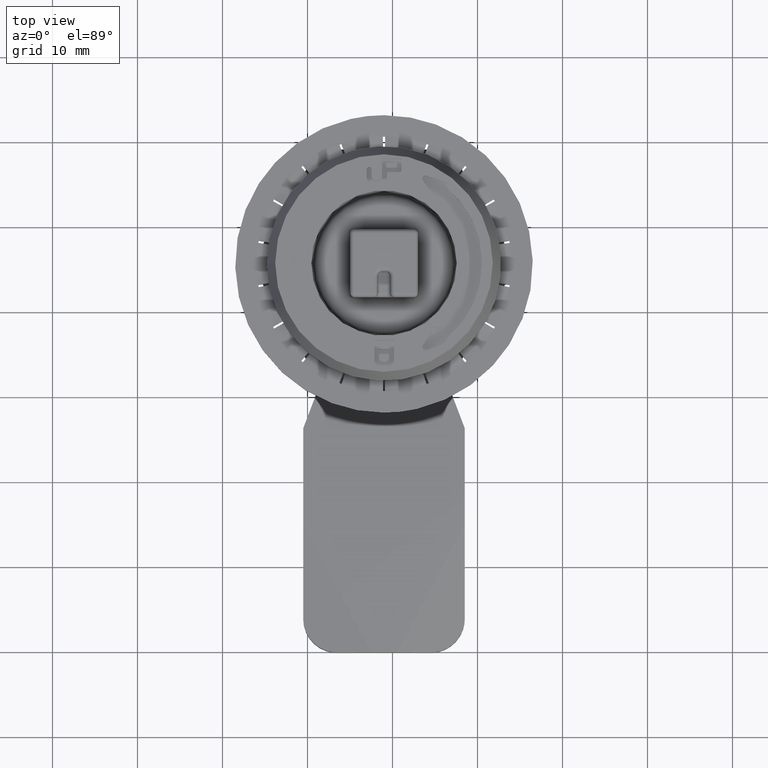
[diagram: clean part render]
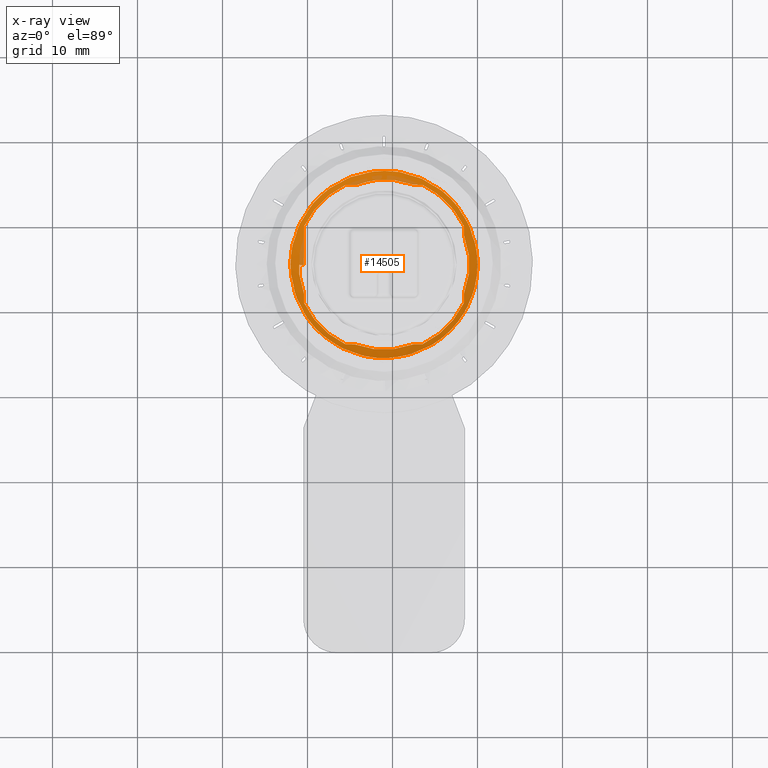
[diagram: x-ray — body ghosted, one internal face saturated and labeled with its STEP entity id]
A machine part, top view, then the same camera in x-ray: the body is ghosted and one INTERNAL B-rep face — a face not visible from any outside direction — is saturated and labeled: STEP entity #14505.
In plain terms, the highlighted face is a freeform B-spline surface patch.
Its self-contained STEP definition (entity closure, byte-faithful):
#86=ELLIPSE('',#15315,8.8879920269144,7.7731213978362);
#1160=FACE_OUTER_BOUND('',#1955,.T.);
#1955=EDGE_LOOP('',(#9741,#9742,#9743,#9744,#9745,#9746,#9747,#9748,#9749,
#9750,#9751,#9752,#9753,#9754,#9755,#9756,#9757,#9758,#9759,#9760,#9761,
#9762,#9763,#9764,#9765,#9766,#9767,#9768,#9769,#9770,#9771,#9772,#9773,
#9774,#9775,#9776,#9777,#9778,#9779,#9780,#9781,#9782,#9783,#9784,#9785,
#9786,#9787,#9788,#9789,#9790,#9791,#9792,#9793,#9794,#9795,#9796,#9797));
#2808=B_SPLINE_CURVE_WITH_KNOTS('',3,(#19915,#19916,#19917,#19918,#19919,
#19920,#19921,#19922,#19923,#19924,#19925,#19926,#19927,#19928,#19929,#19930,
#19931,#19932,#19933,#19934,#19935,#19936,#19937,#19938,#19939,#19940,#19941,
#19942,#19943,#19944,#19945,#19946,#19947,#19948,#19949,#19950,#19951,#19952,
#19953,#19954,#19955,#19956,#19957,#19958,#19959,#19960,#19961,#19962,#19963,
#19964,#19965,#19966,#19967,#19968,#19969,#19970,#19971,#19972,#19973,#19974,
#19975,#19976,#19977,#19978,#19979,#19980,#19981,#19982,#19983,#19984,#19985,
#19986,#19987,#19988,#19989,#19990,#19991,#19992,#19993,#19994,#19995,#19996,
#19997,#19998,#19999,#20000,#20001,#20002,#20003,#20004,#20005,#20006,#20007,
#20008,#20009,#20010,#20011,#20012,#20013,#20014,#20015,#20016,#20017,#20018,
#20019,#20020,#20021,#20022,#20023,#20024,#20025,#20026,#20027,#20028,#20029,
#20030,#20031,#20032,#20033,#20034,#20035,#20036,#20037,#20038,#20039,#20040,
#20041,#20042,#20043,#20044,#20045,#20046,#20047,#20048,#20049,#20050,#20051,
#20052,#20053,#20054,#20055,#20056,#20057,#20058,#20059,#20060,#20061,#20062,
#20063,#20064,#20065,#20066,#20067,#20068,#20069,#20070,#20071,#20072,#20073,
#20074,#20075,#20076,#20077,#20078,#20079,#20080,#20081,#20082,#20083,#20084,
#20085,#20086,#20087,#20088,#20089,#20090,#20091,#20092,#20093,#20094,#20095,
#20096,#20097,#20098,#20099,#20100,#20101,#20102,#20103,#20104,#20105,#20106,
#20107,#20108,#20109,#20110,#20111,#20112,#20113,#20114,#20115,#20116,#20117,
#20118,#20119,#20120,#20121,#20122,#20123,#20124,#20125,#20126,#20127,#20128,
#20129,#20130,#20131,#20132,#20133,#20134,#20135,#20136,#20137,#20138,#20139,
#20140,#20141,#20142,#20143,#20144,#20145,#20146,#20147,#20148,#20149,#20150,
#20151,#20152,#20153,#20154,#20155,#20156),.UNSPECIFIED.,.F.,.F.,(4,2,2,
2,2,2,2,2,2,2,2,2,2,2,2,2,2,2,2,2,2,2,2,2,2,2,2,2,2,2,2,2,2,2,2,2,2,2,2,
2,2,2,2,2,2,2,2,2,2,2,2,2,2,2,2,2,2,2,2,2,2,2,2,2,2,2,2,2,2,2,2,2,2,2,2,
2,2,2,2,2,2,2,2,2,2,2,2,2,2,2,2,2,2,2,2,2,2,2,2,2,2,2,2,2,2,2,2,2,2,2,2,
2,2,2,2,2,2,2,2,2,4),(1.00000000788358E-6,0.124134300610628,0.254360914466781,
0.488712000636597,0.673315016636609,0.890633828472495,1.05797938344775,
1.24384200603897,1.38215546598871,1.54927793239866,1.75146845223911,1.98613575054056,
2.21922829681046,2.4029591207099,2.62011267920542,2.78749195504709,2.97331764774331,
3.11141397643394,3.27885527368945,3.48114786087422,3.71571720724945,3.94918698615849,
4.13596037676993,4.34352937652073,4.51255166896098,4.69625030059143,4.82305317761671,
5.00078181301254,5.13618462162415,5.34068502274398,5.51900226794957,5.78133706882961,
5.87144529563348,6.06269876757052,6.29239805235905,6.54841192562119,6.73188248911129,
6.99196138656672,7.15271370448313,7.47635097743576,7.58010437260162,7.84808898123655,
8.00912480063555,8.3244263352284,8.47261113967469,8.71458898159796,8.87652813917672,
9.22143168072422,9.31926975254114,9.57400254168441,9.73548764690543,10.0596417221176,
10.2046002371903,10.4188402876155,10.5867012449506,10.7708849257453,10.90596900769,
11.0249736601143,11.1454781408427,11.3441637252894,11.5322193271758,11.6975884024471,
11.9268480757294,12.1041718313322,12.2355858581774,12.4202320706772,12.588632393144,
12.8004438495111,12.9782905929697,13.2207390490648,13.3803597244847,13.5909560360221,
13.6963458736921,13.8040144029817,14.1160360550133,14.2770529795576,14.5457822657132,
14.6496553240833,14.972925719842,15.1336843040038,15.387087399212,15.5524251896819,
15.6920560410446,15.8782193841386,16.0454590509086,16.2638528711203,16.4540353862571,
16.6795766747814,16.9161265588584,17.1167301258049,17.2790548866787,17.4208396584716,
17.6074344516805,17.7744031737382,17.9944558517725,18.1872263084541,18.4093378963904,
18.6465002454503,18.846534202694,19.007417737156,19.1502363668204,19.3370439254222,
19.5038821821745,19.7247321632537,19.9162947269776,20.1394017394779,20.3763962083204,
20.576578472589,20.7378358837669,20.8803807742712,21.0671282643831,21.2339972481468,
21.4546335017387,21.6464397142195,21.8693549341353,22.1063775264537,22.3065270133274,
22.4677079864246,22.7250460816585,22.9315606007858,23.0670443824334),
 .UNSPECIFIED.);
#2812=B_SPLINE_CURVE_WITH_KNOTS('',3,(#20580,#20581,#20582,#20583,#20584),
 .UNSPECIFIED.,.F.,.F.,(4,1,4),(0.,0.499999999999975,1.),.UNSPECIFIED.);
#2816=B_SPLINE_CURVE_WITH_KNOTS('',3,(#20604,#20605,#20606,#20607,#20608),
 .UNSPECIFIED.,.F.,.F.,(4,1,4),(0.,0.499999999998815,1.),.UNSPECIFIED.);
#2820=B_SPLINE_CURVE_WITH_KNOTS('',3,(#20628,#20629,#20630,#20631,#20632),
 .UNSPECIFIED.,.F.,.F.,(4,1,4),(0.,0.499999999998817,1.),.UNSPECIFIED.);
#2824=B_SPLINE_CURVE_WITH_KNOTS('',3,(#20652,#20653,#20654,#20655,#20656),
 .UNSPECIFIED.,.F.,.F.,(4,1,4),(0.,0.49999999999997,1.),.UNSPECIFIED.);
#2828=B_SPLINE_CURVE_WITH_KNOTS('',3,(#20676,#20677,#20678,#20679,#20680),
 .UNSPECIFIED.,.F.,.F.,(4,1,4),(0.,0.499999999999959,1.),.UNSPECIFIED.);
#2832=B_SPLINE_CURVE_WITH_KNOTS('',3,(#20700,#20701,#20702,#20703,#20704),
 .UNSPECIFIED.,.F.,.F.,(4,1,4),(0.,0.499999999998815,1.),.UNSPECIFIED.);
#2836=B_SPLINE_CURVE_WITH_KNOTS('',3,(#20724,#20725,#20726,#20727,#20728),
 .UNSPECIFIED.,.F.,.F.,(4,1,4),(0.,0.499999999998771,1.),.UNSPECIFIED.);
#2840=B_SPLINE_CURVE_WITH_KNOTS('',3,(#20748,#20749,#20750,#20751,#20752),
 .UNSPECIFIED.,.F.,.F.,(4,1,4),(0.,0.499999999999284,1.),.UNSPECIFIED.);
#2844=B_SPLINE_CURVE_WITH_KNOTS('',3,(#20772,#20773,#20774,#20775,#20776),
 .UNSPECIFIED.,.F.,.F.,(4,1,4),(0.,0.499999999998802,1.),.UNSPECIFIED.);
#2857=B_SPLINE_CURVE_WITH_KNOTS('',3,(#20866,#20867,#20868,#20869,#20870,
#20871),.UNSPECIFIED.,.F.,.F.,(4,2,4),(9.99999992934136E-7,0.178336107615234,
0.356745479029247),.UNSPECIFIED.);
#2861=B_SPLINE_CURVE_WITH_KNOTS('',3,(#20892,#20893,#20894,#20895,#20896,
#20897,#20898,#20899,#20900,#20901,#20902,#20903,#20904),.UNSPECIFIED.,
 .F.,.F.,(4,3,3,3,4),(9.99999998438179E-7,0.356535970374338,0.514757434433387,
0.673196302243765,0.713043399813878),.UNSPECIFIED.);
#2863=B_SPLINE_CURVE_WITH_KNOTS('',3,(#21012,#21013,#21014,#21015),
 .UNSPECIFIED.,.F.,.F.,(4,4),(0.,1.),.UNSPECIFIED.);
#2864=B_SPLINE_CURVE_WITH_KNOTS('',3,(#21017,#21018,#21019,#21020,#21021),
 .UNSPECIFIED.,.F.,.F.,(4,1,4),(0.,0.500000000000034,1.),.UNSPECIFIED.);
#2865=B_SPLINE_CURVE_WITH_KNOTS('',3,(#21022,#21023,#21024,#21025),
 .UNSPECIFIED.,.F.,.F.,(4,4),(0.,1.),.UNSPECIFIED.);
#2866=B_SPLINE_CURVE_WITH_KNOTS('',3,(#21027,#21028,#21029,#21030),
 .UNSPECIFIED.,.F.,.F.,(4,4),(0.,1.),.UNSPECIFIED.);
#2867=B_SPLINE_CURVE_WITH_KNOTS('',3,(#21032,#21033,#21034,#21035,#21036),
 .UNSPECIFIED.,.F.,.F.,(4,1,4),(0.,0.500000000000023,1.),.UNSPECIFIED.);
#2868=B_SPLINE_CURVE_WITH_KNOTS('',3,(#21037,#21038,#21039,#21040),
 .UNSPECIFIED.,.F.,.F.,(4,4),(0.,1.),.UNSPECIFIED.);
#2869=B_SPLINE_CURVE_WITH_KNOTS('',3,(#21046,#21047,#21048,#21049,#21050,
#21051),.UNSPECIFIED.,.F.,.F.,(4,2,4),(1.00000001505872E-6,0.172292467720575,
0.344444459303463),.UNSPECIFIED.);
#2870=B_SPLINE_CURVE_WITH_KNOTS('',3,(#21053,#21054,#21055,#21056,#21057),
 .UNSPECIFIED.,.F.,.F.,(4,1,4),(0.,0.499999999999983,1.),.UNSPECIFIED.);
#2871=B_SPLINE_CURVE_WITH_KNOTS('',3,(#21059,#21060,#21061,#21062,#21063,
#21064),.UNSPECIFIED.,.F.,.F.,(4,2,4),(9.99999996512812E-7,0.0697455041119218,
0.139410384197705),.UNSPECIFIED.);
#2872=B_SPLINE_CURVE_WITH_KNOTS('',3,(#21066,#21067,#21068,#21069,#21070,
#21071,#21072,#21073,#21074,#21075,#21076,#21077,#21078,#21079,#21080,#21081,
#21082,#21083,#21084,#21085,#21086,#21087),.UNSPECIFIED.,.F.,.F.,(4,3,3,
3,3,3,3,4),(-0.558773374823174,-0.328332465414387,-0.314291027868285,-0.303759949708708,
-0.301400834672669,-0.299495444914077,-0.272166715229978,-9.99999150495249E-7),
 .UNSPECIFIED.);
#2873=B_SPLINE_CURVE_WITH_KNOTS('',3,(#21089,#21090,#21091,#21092,#21093,
#21094),.UNSPECIFIED.,.F.,.F.,(4,2,4),(9.99999954266954E-7,0.0262920327103274,
0.0525830109203582),.UNSPECIFIED.);
#2874=B_SPLINE_CURVE_WITH_KNOTS('',3,(#21096,#21097,#21098,#21099,#21100),
 .UNSPECIFIED.,.F.,.F.,(4,1,4),(0.,0.2854530079571,1.),.UNSPECIFIED.);
#2875=B_SPLINE_CURVE_WITH_KNOTS('',3,(#21101,#21102,#21103,#21104,#21105,
#21106,#21107,#21108,#21109,#21110),.UNSPECIFIED.,.F.,.F.,(4,3,3,4),(0.,
0.498790554826306,0.519582646238145,0.999999999999913),.UNSPECIFIED.);
#2876=B_SPLINE_CURVE_WITH_KNOTS('',3,(#21112,#21113,#21114,#21115,#21116,
#21117,#21118,#21119,#21120,#21121,#21122,#21123,#21124),.UNSPECIFIED.,
 .F.,.F.,(4,3,3,3,4),(2.16908114310143E-7,0.633043742757415,0.680041436642877,
0.892625990137225,1.),.UNSPECIFIED.);
#2877=B_SPLINE_CURVE_WITH_KNOTS('',3,(#21128,#21129,#21130,#21131,#21132,
#21133),.UNSPECIFIED.,.F.,.F.,(4,2,4),(0.,0.177505095199423,0.317552240508185),
 .UNSPECIFIED.);
#2878=B_SPLINE_CURVE_WITH_KNOTS('',3,(#21135,#21136,#21137,#21138,#21139,
#21140),.UNSPECIFIED.,.F.,.F.,(4,2,4),(1.0000000024927E-6,0.0196608682505657,
0.039320719991314),.UNSPECIFIED.);
#2879=B_SPLINE_CURVE_WITH_KNOTS('',3,(#21142,#21143,#21144,#21145,#21146),
 .UNSPECIFIED.,.F.,.F.,(4,1,4),(0.,0.5,1.),.UNSPECIFIED.);
#2880=B_SPLINE_CURVE_WITH_KNOTS('',3,(#21147,#21148,#21149,#21150),
 .UNSPECIFIED.,.F.,.F.,(4,4),(0.,1.),.UNSPECIFIED.);
#2881=B_SPLINE_CURVE_WITH_KNOTS('',3,(#21152,#21153,#21154,#21155),
 .UNSPECIFIED.,.F.,.F.,(4,4),(0.,1.),.UNSPECIFIED.);
#2882=B_SPLINE_CURVE_WITH_KNOTS('',3,(#21157,#21158,#21159,#21160,#21161),
 .UNSPECIFIED.,.F.,.F.,(4,1,4),(0.,0.500000000000037,1.),.UNSPECIFIED.);
#2883=B_SPLINE_CURVE_WITH_KNOTS('',3,(#21162,#21163,#21164,#21165),
 .UNSPECIFIED.,.F.,.F.,(4,4),(0.,1.),.UNSPECIFIED.);
#2884=B_SPLINE_CURVE_WITH_KNOTS('',3,(#21167,#21168,#21169,#21170),
 .UNSPECIFIED.,.F.,.F.,(4,4),(0.,1.),.UNSPECIFIED.);
#2885=B_SPLINE_CURVE_WITH_KNOTS('',3,(#21172,#21173,#21174,#21175,#21176),
 .UNSPECIFIED.,.F.,.F.,(4,1,4),(0.,0.500000000000002,1.),.UNSPECIFIED.);
#2886=B_SPLINE_CURVE_WITH_KNOTS('',3,(#21177,#21178,#21179,#21180),
 .UNSPECIFIED.,.F.,.F.,(4,4),(0.,1.),.UNSPECIFIED.);
#2887=B_SPLINE_CURVE_WITH_KNOTS('',3,(#21182,#21183,#21184,#21185),
 .UNSPECIFIED.,.F.,.F.,(4,4),(0.,1.),.UNSPECIFIED.);
#2888=B_SPLINE_CURVE_WITH_KNOTS('',3,(#21187,#21188,#21189,#21190,#21191),
 .UNSPECIFIED.,.F.,.F.,(4,1,4),(0.,0.499999999999957,1.),.UNSPECIFIED.);
#2889=B_SPLINE_CURVE_WITH_KNOTS('',3,(#21192,#21193,#21194,#21195),
 .UNSPECIFIED.,.F.,.F.,(4,4),(0.,1.),.UNSPECIFIED.);
#2890=B_SPLINE_CURVE_WITH_KNOTS('',3,(#21197,#21198,#21199,#21200),
 .UNSPECIFIED.,.F.,.F.,(4,4),(0.,1.),.UNSPECIFIED.);
#2891=B_SPLINE_CURVE_WITH_KNOTS('',3,(#21202,#21203,#21204,#21205,#21206),
 .UNSPECIFIED.,.F.,.F.,(4,1,4),(0.,0.499999999999965,1.),.UNSPECIFIED.);
#2892=B_SPLINE_CURVE_WITH_KNOTS('',3,(#21207,#21208,#21209,#21210),
 .UNSPECIFIED.,.F.,.F.,(4,4),(0.,1.),.UNSPECIFIED.);
#2893=B_SPLINE_CURVE_WITH_KNOTS('',3,(#21212,#21213,#21214,#21215),
 .UNSPECIFIED.,.F.,.F.,(4,4),(0.,1.),.UNSPECIFIED.);
#2894=B_SPLINE_CURVE_WITH_KNOTS('',3,(#21217,#21218,#21219,#21220,#21221),
 .UNSPECIFIED.,.F.,.F.,(4,1,4),(0.,0.500000000000047,1.),.UNSPECIFIED.);
#2895=B_SPLINE_CURVE_WITH_KNOTS('',3,(#21222,#21223,#21224,#21225),
 .UNSPECIFIED.,.F.,.F.,(4,4),(0.,1.),.UNSPECIFIED.);
#2896=B_SPLINE_CURVE_WITH_KNOTS('',3,(#21227,#21228,#21229,#21230),
 .UNSPECIFIED.,.F.,.F.,(4,4),(0.,1.),.UNSPECIFIED.);
#2897=B_SPLINE_CURVE_WITH_KNOTS('',3,(#21232,#21233,#21234,#21235,#21236),
 .UNSPECIFIED.,.F.,.F.,(4,1,4),(0.,0.499999999999896,1.),.UNSPECIFIED.);
#2898=B_SPLINE_CURVE_WITH_KNOTS('',3,(#21237,#21238,#21239,#21240),
 .UNSPECIFIED.,.F.,.F.,(4,4),(0.,1.),.UNSPECIFIED.);
#2899=B_SPLINE_CURVE_WITH_KNOTS('',3,(#21242,#21243,#21244,#21245),
 .UNSPECIFIED.,.F.,.F.,(4,4),(0.,1.),.UNSPECIFIED.);
#2900=B_SPLINE_CURVE_WITH_KNOTS('',3,(#21247,#21248,#21249,#21250,#21251),
 .UNSPECIFIED.,.F.,.F.,(4,1,4),(0.,0.5,1.),.UNSPECIFIED.);
#2901=B_SPLINE_CURVE_WITH_KNOTS('',3,(#21252,#21253,#21254,#21255),
 .UNSPECIFIED.,.F.,.F.,(4,4),(0.,1.),.UNSPECIFIED.);
#2902=B_SPLINE_CURVE_WITH_KNOTS('',3,(#21257,#21258,#21259,#21260),
 .UNSPECIFIED.,.F.,.F.,(4,4),(0.,1.),.UNSPECIFIED.);
#2903=B_SPLINE_CURVE_WITH_KNOTS('',3,(#21262,#21263,#21264,#21265,#21266),
 .UNSPECIFIED.,.F.,.F.,(4,1,4),(0.,0.499999999999969,1.),.UNSPECIFIED.);
#2904=B_SPLINE_CURVE_WITH_KNOTS('',3,(#21267,#21268,#21269,#21270),
 .UNSPECIFIED.,.F.,.F.,(4,4),(0.,1.),.UNSPECIFIED.);
#3670=LINE('',#21042,#4705);
#3671=LINE('',#21126,#4706);
#4705=VECTOR('',#16376,0.71234209556093);
#4706=VECTOR('',#16379,0.417857009428972);
#5737=VERTEX_POINT('',#19913);
#5738=VERTEX_POINT('',#19914);
#5762=VERTEX_POINT('',#20572);
#5763=VERTEX_POINT('',#20579);
#5766=VERTEX_POINT('',#20596);
#5767=VERTEX_POINT('',#20603);
#5770=VERTEX_POINT('',#20620);
#5771=VERTEX_POINT('',#20627);
#5774=VERTEX_POINT('',#20644);
#5775=VERTEX_POINT('',#20651);
#5778=VERTEX_POINT('',#20668);
#5779=VERTEX_POINT('',#20675);
#5782=VERTEX_POINT('',#20692);
#5783=VERTEX_POINT('',#20699);
#5786=VERTEX_POINT('',#20716);
#5787=VERTEX_POINT('',#20723);
#5790=VERTEX_POINT('',#20740);
#5791=VERTEX_POINT('',#20747);
#5794=VERTEX_POINT('',#20764);
#5795=VERTEX_POINT('',#20771);
#5808=VERTEX_POINT('',#20863);
#5809=VERTEX_POINT('',#20865);
#5812=VERTEX_POINT('',#20884);
#5813=VERTEX_POINT('',#20891);
#5814=VERTEX_POINT('',#21011);
#5815=VERTEX_POINT('',#21016);
#5816=VERTEX_POINT('',#21026);
#5817=VERTEX_POINT('',#21031);
#5818=VERTEX_POINT('',#21041);
#5819=VERTEX_POINT('',#21043);
#5820=VERTEX_POINT('',#21045);
#5821=VERTEX_POINT('',#21052);
#5822=VERTEX_POINT('',#21058);
#5823=VERTEX_POINT('',#21065);
#5824=VERTEX_POINT('',#21088);
#5825=VERTEX_POINT('',#21095);
#5826=VERTEX_POINT('',#21111);
#5827=VERTEX_POINT('',#21125);
#5828=VERTEX_POINT('',#21127);
#5829=VERTEX_POINT('',#21134);
#5830=VERTEX_POINT('',#21141);
#5831=VERTEX_POINT('',#21151);
#5832=VERTEX_POINT('',#21156);
#5833=VERTEX_POINT('',#21166);
#5834=VERTEX_POINT('',#21171);
#5835=VERTEX_POINT('',#21181);
#5836=VERTEX_POINT('',#21186);
#5837=VERTEX_POINT('',#21196);
#5838=VERTEX_POINT('',#21201);
#5839=VERTEX_POINT('',#21211);
#5840=VERTEX_POINT('',#21216);
#5841=VERTEX_POINT('',#21226);
#5842=VERTEX_POINT('',#21231);
#5843=VERTEX_POINT('',#21241);
#5844=VERTEX_POINT('',#21246);
#5845=VERTEX_POINT('',#21256);
#5846=VERTEX_POINT('',#21261);
#7277=EDGE_CURVE('',#5737,#5738,#2808,.T.);
#7310=EDGE_CURVE('',#5763,#5762,#2812,.T.);
#7314=EDGE_CURVE('',#5767,#5766,#2816,.T.);
#7318=EDGE_CURVE('',#5771,#5770,#2820,.T.);
#7322=EDGE_CURVE('',#5775,#5774,#2824,.T.);
#7326=EDGE_CURVE('',#5779,#5778,#2828,.T.);
#7330=EDGE_CURVE('',#5783,#5782,#2832,.T.);
#7334=EDGE_CURVE('',#5787,#5786,#2836,.T.);
#7338=EDGE_CURVE('',#5791,#5790,#2840,.T.);
#7342=EDGE_CURVE('',#5795,#5794,#2844,.T.);
#7357=EDGE_CURVE('',#5809,#5808,#2857,.T.);
#7361=EDGE_CURVE('',#5813,#5812,#2861,.T.);
#7363=EDGE_CURVE('',#5762,#5814,#2863,.T.);
#7364=EDGE_CURVE('',#5815,#5814,#2864,.T.);
#7365=EDGE_CURVE('',#5815,#5813,#2865,.T.);
#7366=EDGE_CURVE('',#5812,#5816,#2866,.T.);
#7367=EDGE_CURVE('',#5817,#5816,#2867,.T.);
#7368=EDGE_CURVE('',#5817,#5809,#2868,.T.);
#7369=EDGE_CURVE('',#5818,#5808,#3670,.T.);
#7370=EDGE_CURVE('',#5819,#5818,#86,.T.);
#7371=EDGE_CURVE('',#5819,#5820,#2869,.T.);
#7372=EDGE_CURVE('',#5821,#5820,#2870,.T.);
#7373=EDGE_CURVE('',#5821,#5822,#2871,.T.);
#7374=EDGE_CURVE('',#5823,#5822,#2872,.T.);
#7375=EDGE_CURVE('',#5823,#5824,#2873,.T.);
#7376=EDGE_CURVE('',#5825,#5824,#2874,.T.);
#7377=EDGE_CURVE('',#5738,#5825,#2875,.T.);
#7378=EDGE_CURVE('',#5737,#5826,#2876,.T.);
#7379=EDGE_CURVE('',#5827,#5826,#3671,.T.);
#7380=EDGE_CURVE('',#5827,#5828,#2877,.T.);
#7381=EDGE_CURVE('',#5828,#5829,#2878,.T.);
#7382=EDGE_CURVE('',#5830,#5829,#2879,.T.);
#7383=EDGE_CURVE('',#5830,#5795,#2880,.T.);
#7384=EDGE_CURVE('',#5794,#5831,#2881,.T.);
#7385=EDGE_CURVE('',#5832,#5831,#2882,.T.);
#7386=EDGE_CURVE('',#5832,#5791,#2883,.T.);
#7387=EDGE_CURVE('',#5790,#5833,#2884,.T.);
#7388=EDGE_CURVE('',#5834,#5833,#2885,.T.);
#7389=EDGE_CURVE('',#5834,#5787,#2886,.T.);
#7390=EDGE_CURVE('',#5786,#5835,#2887,.T.);
#7391=EDGE_CURVE('',#5836,#5835,#2888,.T.);
#7392=EDGE_CURVE('',#5836,#5783,#2889,.T.);
#7393=EDGE_CURVE('',#5782,#5837,#2890,.T.);
#7394=EDGE_CURVE('',#5838,#5837,#2891,.T.);
#7395=EDGE_CURVE('',#5838,#5779,#2892,.T.);
#7396=EDGE_CURVE('',#5778,#5839,#2893,.T.);
#7397=EDGE_CURVE('',#5840,#5839,#2894,.T.);
#7398=EDGE_CURVE('',#5840,#5775,#2895,.T.);
#7399=EDGE_CURVE('',#5774,#5841,#2896,.T.);
#7400=EDGE_CURVE('',#5842,#5841,#2897,.T.);
#7401=EDGE_CURVE('',#5842,#5771,#2898,.T.);
#7402=EDGE_CURVE('',#5770,#5843,#2899,.T.);
#7403=EDGE_CURVE('',#5844,#5843,#2900,.T.);
#7404=EDGE_CURVE('',#5844,#5767,#2901,.T.);
#7405=EDGE_CURVE('',#5766,#5845,#2902,.T.);
#7406=EDGE_CURVE('',#5846,#5845,#2903,.T.);
#7407=EDGE_CURVE('',#5846,#5763,#2904,.T.);
#9741=ORIENTED_EDGE('',*,*,#7310,.T.);
#9742=ORIENTED_EDGE('',*,*,#7363,.T.);
#9743=ORIENTED_EDGE('',*,*,#7364,.F.);
#9744=ORIENTED_EDGE('',*,*,#7365,.T.);
#9745=ORIENTED_EDGE('',*,*,#7361,.T.);
#9746=ORIENTED_EDGE('',*,*,#7366,.T.);
#9747=ORIENTED_EDGE('',*,*,#7367,.F.);
#9748=ORIENTED_EDGE('',*,*,#7368,.T.);
#9749=ORIENTED_EDGE('',*,*,#7357,.T.);
#9750=ORIENTED_EDGE('',*,*,#7369,.F.);
#9751=ORIENTED_EDGE('',*,*,#7370,.F.);
#9752=ORIENTED_EDGE('',*,*,#7371,.T.);
#9753=ORIENTED_EDGE('',*,*,#7372,.F.);
#9754=ORIENTED_EDGE('',*,*,#7373,.T.);
#9755=ORIENTED_EDGE('',*,*,#7374,.F.);
#9756=ORIENTED_EDGE('',*,*,#7375,.T.);
#9757=ORIENTED_EDGE('',*,*,#7376,.F.);
#9758=ORIENTED_EDGE('',*,*,#7377,.F.);
#9759=ORIENTED_EDGE('',*,*,#7277,.F.);
#9760=ORIENTED_EDGE('',*,*,#7378,.T.);
#9761=ORIENTED_EDGE('',*,*,#7379,.F.);
#9762=ORIENTED_EDGE('',*,*,#7380,.T.);
#9763=ORIENTED_EDGE('',*,*,#7381,.T.);
#9764=ORIENTED_EDGE('',*,*,#7382,.F.);
#9765=ORIENTED_EDGE('',*,*,#7383,.T.);
#9766=ORIENTED_EDGE('',*,*,#7342,.T.);
#9767=ORIENTED_EDGE('',*,*,#7384,.T.);
#9768=ORIENTED_EDGE('',*,*,#7385,.F.);
#9769=ORIENTED_EDGE('',*,*,#7386,.T.);
#9770=ORIENTED_EDGE('',*,*,#7338,.T.);
#9771=ORIENTED_EDGE('',*,*,#7387,.T.);
#9772=ORIENTED_EDGE('',*,*,#7388,.F.);
#9773=ORIENTED_EDGE('',*,*,#7389,.T.);
#9774=ORIENTED_EDGE('',*,*,#7334,.T.);
#9775=ORIENTED_EDGE('',*,*,#7390,.T.);
#9776=ORIENTED_EDGE('',*,*,#7391,.F.);
#9777=ORIENTED_EDGE('',*,*,#7392,.T.);
#9778=ORIENTED_EDGE('',*,*,#7330,.T.);
#9779=ORIENTED_EDGE('',*,*,#7393,.T.);
#9780=ORIENTED_EDGE('',*,*,#7394,.F.);
#9781=ORIENTED_EDGE('',*,*,#7395,.T.);
#9782=ORIENTED_EDGE('',*,*,#7326,.T.);
#9783=ORIENTED_EDGE('',*,*,#7396,.T.);
#9784=ORIENTED_EDGE('',*,*,#7397,.F.);
#9785=ORIENTED_EDGE('',*,*,#7398,.T.);
#9786=ORIENTED_EDGE('',*,*,#7322,.T.);
#9787=ORIENTED_EDGE('',*,*,#7399,.T.);
#9788=ORIENTED_EDGE('',*,*,#7400,.F.);
#9789=ORIENTED_EDGE('',*,*,#7401,.T.);
#9790=ORIENTED_EDGE('',*,*,#7318,.T.);
#9791=ORIENTED_EDGE('',*,*,#7402,.T.);
#9792=ORIENTED_EDGE('',*,*,#7403,.F.);
#9793=ORIENTED_EDGE('',*,*,#7404,.T.);
#9794=ORIENTED_EDGE('',*,*,#7314,.T.);
#9795=ORIENTED_EDGE('',*,*,#7405,.T.);
#9796=ORIENTED_EDGE('',*,*,#7406,.F.);
#9797=ORIENTED_EDGE('',*,*,#7407,.T.);
#14260=B_SPLINE_SURFACE_WITH_KNOTS('',1,3,((#20909,#20910,#20911,#20912,
#20913,#20914,#20915,#20916,#20917,#20918,#20919,#20920,#20921,#20922,#20923,
#20924,#20925,#20926,#20927,#20928,#20929,#20930,#20931,#20932,#20933,#20934,
#20935,#20936,#20937,#20938,#20939,#20940,#20941,#20942),(#20943,#20944,
#20945,#20946,#20947,#20948,#20949,#20950,#20951,#20952,#20953,#20954,#20955,
#20956,#20957,#20958,#20959,#20960,#20961,#20962,#20963,#20964,#20965,#20966,
#20967,#20968,#20969,#20970,#20971,#20972,#20973,#20974,#20975,#20976),
(#20977,#20978,#20979,#20980,#20981,#20982,#20983,#20984,#20985,#20986,
#20987,#20988,#20989,#20990,#20991,#20992,#20993,#20994,#20995,#20996,#20997,
#20998,#20999,#21000,#21001,#21002,#21003,#21004,#21005,#21006,#21007,#21008,
#21009,#21010)),.UNSPECIFIED.,.F.,.F.,.F.,(2,1,2),(4,1,1,1,1,1,1,1,1,1,
1,1,1,1,1,1,1,1,1,1,1,1,1,1,1,1,1,1,1,1,1,4),(0.,0.386728436649911,1.),
(0.,0.0332221266072148,0.0664442532144296,0.0996663798216443,0.132888506428859,
0.166110633036074,0.199332759643289,0.232554886250504,0.265777012857718,
0.298999139464933,0.332221266072148,0.365443392679362,0.398665519286578,
0.431887645893792,0.465109772501007,0.498331899108222,0.531554025715436,
0.564776152322651,0.597998278929866,0.631220405537081,0.664442532144296,
0.69766465875151,0.730886785358725,0.76410891196594,0.797331038573155,0.830553165180369,
0.863775291787584,0.896997418394799,0.930219545002014,0.963441671609229,
0.996663798216443,1.),.UNSPECIFIED.);
#14505=ADVANCED_FACE('',(#1160),#14260,.F.);
#15315=AXIS2_PLACEMENT_3D('',#21044,#16377,#16378);
#16376=DIRECTION('',(-0.866025403784413,0.,0.500000000000044));
#16377=DIRECTION('center_axis',(-6.73297184095169E-12,3.27383978615268E-13,
1.));
#16378=DIRECTION('ref_axis',(-0.514752599831216,-0.857338766746847,-3.18513578324156E-12));
#16379=DIRECTION('',(-0.0680634008926813,0.863313549821404,0.500057084895003));
#19913=CARTESIAN_POINT('',(170.814924304034,215.849241894451,-8.49999999649959));
#19914=CARTESIAN_POINT('',(177.500249546501,198.018183785919,-13.4999999999995));
#19915=CARTESIAN_POINT('Ctrl Pts',(170.814914443642,215.849243547928,-8.49999979963304));
#19916=CARTESIAN_POINT('Ctrl Pts',(171.222948120363,215.780985300577,-8.50783045353023));
#19917=CARTESIAN_POINT('Ctrl Pts',(171.626805656977,215.689763361365,-8.51562961486554));
#19918=CARTESIAN_POINT('Ctrl Pts',(172.441840916914,215.456677028149,-8.53224040560761));
#19919=CARTESIAN_POINT('Ctrl Pts',(172.851681066633,215.312754396572,-8.54107172487276));
#19920=CARTESIAN_POINT('Ctrl Pts',(173.972235077855,214.843111166743,-8.56714366161785));
#19921=CARTESIAN_POINT('Ctrl Pts',(174.658297886394,214.465385035824,-8.58553814314625));
#19922=CARTESIAN_POINT('Ctrl Pts',(175.802859603926,213.665997578885,-8.61921570896521));
#19923=CARTESIAN_POINT('Ctrl Pts',(176.276755833743,213.272076727667,-8.63420337987538));
#19924=CARTESIAN_POINT('Ctrl Pts',(177.23142306673,212.332674882188,-8.66365892661169));
#19925=CARTESIAN_POINT('Ctrl Pts',(177.696193889202,211.775003565154,-8.67726878945321));
#19926=CARTESIAN_POINT('Ctrl Pts',(178.415867842482,210.71422990458,-8.70202540198352));
#19927=CARTESIAN_POINT('Ctrl Pts',(178.693406412085,210.229612730408,-8.71297603796258));
#19928=CARTESIAN_POINT('Ctrl Pts',(179.199099056225,209.166771347215,-8.73774132402938));
#19929=CARTESIAN_POINT('Ctrl Pts',(179.41747829598,208.586042347841,-8.75171465712334));
#19930=CARTESIAN_POINT('Ctrl Pts',(179.711099172902,207.546519700081,-8.77742602712153));
#19931=CARTESIAN_POINT('Ctrl Pts',(179.808376560834,207.095565072953,-8.78877246015172));
#19932=CARTESIAN_POINT('Ctrl Pts',(179.960095941946,206.089214272646,-8.81367701131323));
#19933=CARTESIAN_POINT('Ctrl Pts',(180.001181425271,205.533048727844,-8.82717224806396));
#19934=CARTESIAN_POINT('Ctrl Pts',(179.998513551398,204.30240256739,-8.85386110709685));
#19935=CARTESIAN_POINT('Ctrl Pts',(179.935154906089,203.630179439314,-8.86642086994742));
#19936=CARTESIAN_POINT('Ctrl Pts',(179.666214647078,202.19938325768,-8.89397199459571));
#19937=CARTESIAN_POINT('Ctrl Pts',(179.44020574486,201.448427276101,-8.90904805588924));
#19938=CARTESIAN_POINT('Ctrl Pts',(178.834793293965,200.011991849202,-8.94255259083783));
#19939=CARTESIAN_POINT('Ctrl Pts',(178.458147900085,199.330192716311,-8.96086436307325));
#19940=CARTESIAN_POINT('Ctrl Pts',(177.661883679033,198.192166877344,-8.99437198419636));
#19941=CARTESIAN_POINT('Ctrl Pts',(177.269629966618,197.720710395721,-9.00928183057247));
#19942=CARTESIAN_POINT('Ctrl Pts',(176.332631914476,196.768589162041,-9.03865822623907));
#19943=CARTESIAN_POINT('Ctrl Pts',(175.775416012025,196.304175242059,-9.05225844350861));
#19944=CARTESIAN_POINT('Ctrl Pts',(174.715112711849,195.584662375219,-9.07700535289243));
#19945=CARTESIAN_POINT('Ctrl Pts',(174.230438037478,195.307033457136,-9.08795709561021));
#19946=CARTESIAN_POINT('Ctrl Pts',(173.167679177945,194.801280563463,-9.11271985120812));
#19947=CARTESIAN_POINT('Ctrl Pts',(172.587105675405,194.58289629785,-9.12668877061676));
#19948=CARTESIAN_POINT('Ctrl Pts',(171.548464996448,194.28939524469,-9.15237760583672));
#19949=CARTESIAN_POINT('Ctrl Pts',(171.098255216274,194.192176818379,-9.16370482519983));
#19950=CARTESIAN_POINT('Ctrl Pts',(170.091649837083,194.040093264052,-9.18861801498946));
#19951=CARTESIAN_POINT('Ctrl Pts',(169.534445520637,193.998833434943,-9.2021413515167));
#19952=CARTESIAN_POINT('Ctrl Pts',(168.302436994764,194.001464774902,-9.22886109035935));
#19953=CARTESIAN_POINT('Ctrl Pts',(167.629895860492,194.064861011633,-9.24142615116337));
#19954=CARTESIAN_POINT('Ctrl Pts',(166.199147528957,194.333873048019,-9.26897674184485));
#19955=CARTESIAN_POINT('Ctrl Pts',(165.448532890128,194.559784683738,-9.28404645159453));
#19956=CARTESIAN_POINT('Ctrl Pts',(164.011261794165,195.165479643712,-9.31756876460262));
#19957=CARTESIAN_POINT('Ctrl Pts',(163.328423174654,195.54281188001,-9.33591216191376));
#19958=CARTESIAN_POINT('Ctrl Pts',(162.181334045681,196.345919653641,-9.36969440057623));
#19959=CARTESIAN_POINT('Ctrl Pts',(161.702725102579,196.745479513964,-9.38485255254457));
#19960=CARTESIAN_POINT('Ctrl Pts',(160.768985538207,197.670007941134,-9.41362751328799));
#19961=CARTESIAN_POINT('Ctrl Pts',(160.324479425838,198.201929717276,-9.42668811320809));
#19962=CARTESIAN_POINT('Ctrl Pts',(159.613982587459,199.236328982504,-9.45090269942588));
#19963=CARTESIAN_POINT('Ctrl Pts',(159.331227556878,199.724390704502,-9.4619207616042));
#19964=CARTESIAN_POINT('Ctrl Pts',(158.821765580821,200.783575252681,-9.48656780102976));
#19965=CARTESIAN_POINT('Ctrl Pts',(158.60295497897,201.356361801043,-9.50031402184945));
#19966=CARTESIAN_POINT('Ctrl Pts',(158.31556091085,202.350231584457,-9.52485788741399));
#19967=CARTESIAN_POINT('Ctrl Pts',(158.22167801475,202.762528875113,-9.53520770807386));
#19968=CARTESIAN_POINT('Ctrl Pts',(158.053722159487,203.763200900176,-9.56007506603057));
#19969=CARTESIAN_POINT('Ctrl Pts',(158.003018065703,204.354179967979,-9.57457598642673));
#19970=CARTESIAN_POINT('Ctrl Pts',(157.997931035906,205.397527538068,-9.59745192039338));
#19971=CARTESIAN_POINT('Ctrl Pts',(158.023489942883,205.8483994584,-9.60636850987989));
#19972=CARTESIAN_POINT('Ctrl Pts',(158.156972028093,206.973084094402,-9.62811378530773));
#19973=CARTESIAN_POINT('Ctrl Pts',(158.299979365817,207.640812601562,-9.64065166264735));
#19974=CARTESIAN_POINT('Ctrl Pts',(158.681616227909,208.857978668558,-9.66607422441194));
#19975=CARTESIAN_POINT('Ctrl Pts',(158.905019262639,209.409576869642,-9.67865405949149));
#19976=CARTESIAN_POINT('Ctrl Pts',(159.564441874396,210.721386497319,-9.71189548330941));
#19977=CARTESIAN_POINT('Ctrl Pts',(160.048671155468,211.452719980379,-9.73361347299823));
#19978=CARTESIAN_POINT('Ctrl Pts',(160.808600245726,212.34786328196,-9.76132002133442));
#19979=CARTESIAN_POINT('Ctrl Pts',(161.012181618352,212.568678220134,-9.76822997806913));
#19980=CARTESIAN_POINT('Ctrl Pts',(161.675279970395,213.231313303015,-9.78860334102833));
#19981=CARTESIAN_POINT('Ctrl Pts',(162.164320140203,213.641735056545,-9.8007327016589));
#19982=CARTESIAN_POINT('Ctrl Pts',(163.31288345732,214.446824326845,-9.82777260517527));
#19983=CARTESIAN_POINT('Ctrl Pts',(163.983748771716,214.819520590404,-9.84277298515547));
#19984=CARTESIAN_POINT('Ctrl Pts',(165.472591865627,215.453949077069,-9.87798124034049));
#19985=CARTESIAN_POINT('Ctrl Pts',(166.29354347406,215.695915131803,-9.89853593987829));
#19986=CARTESIAN_POINT('Ctrl Pts',(167.736519656002,215.944279268073,-9.93442354216342));
#19987=CARTESIAN_POINT('Ctrl Pts',(168.346521396526,215.99757345695,-9.94942907054353));
#19988=CARTESIAN_POINT('Ctrl Pts',(169.824297281741,216.003243971871,-9.98177881717195));
#19989=CARTESIAN_POINT('Ctrl Pts',(170.688192595686,215.904171971092,-9.9972963822307));
#19990=CARTESIAN_POINT('Ctrl Pts',(172.052759486755,215.581472179438,-10.024125337499));
#19991=CARTESIAN_POINT('Ctrl Pts',(172.564296886014,215.420300572617,-10.0346987718569));
#19992=CARTESIAN_POINT('Ctrl Pts',(174.064153966258,214.824312894784,-10.0688032833721));
#19993=CARTESIAN_POINT('Ctrl Pts',(175.00222786814,214.28093100978,-10.0950110386451));
#19994=CARTESIAN_POINT('Ctrl Pts',(176.116661314722,213.394795974185,-10.1291121477118));
#19995=CARTESIAN_POINT('Ctrl Pts',(176.376916879679,213.167041872204,-10.1372608399213));
#19996=CARTESIAN_POINT('Ctrl Pts',(177.269426423243,212.308464447909,-10.1648977302478));
#19997=CARTESIAN_POINT('Ctrl Pts',(177.835075913132,211.613504179849,-10.1812057313115));
#19998=CARTESIAN_POINT('Ctrl Pts',(178.596182630094,210.403801955958,-10.2090855851613));
#19999=CARTESIAN_POINT('Ctrl Pts',(178.848263404994,209.929450877318,-10.2198877162875));
#20000=CARTESIAN_POINT('Ctrl Pts',(179.488551715269,208.477572406689,-10.254059279737));
#20001=CARTESIAN_POINT('Ctrl Pts',(179.772525115505,207.460813134249,-10.2799013381036));
#20002=CARTESIAN_POINT('Ctrl Pts',(179.971726208244,205.929963214303,-10.3175118102693));
#20003=CARTESIAN_POINT('Ctrl Pts',(180.002404114138,205.436763823782,-10.3293081961942));
#20004=CARTESIAN_POINT('Ctrl Pts',(179.995687443553,204.137110917297,-10.3573632888176));
#20005=CARTESIAN_POINT('Ctrl Pts',(179.902938228296,203.333928379821,-10.3719337035375));
#20006=CARTESIAN_POINT('Ctrl Pts',(179.602994272417,202.022154445328,-10.3976099947208));
#20007=CARTESIAN_POINT('Ctrl Pts',(179.444215365291,201.505804753143,-10.4081989177321));
#20008=CARTESIAN_POINT('Ctrl Pts',(178.830716465106,199.932732008303,-10.4436915731104));
#20009=CARTESIAN_POINT('Ctrl Pts',(178.248091110438,198.934314524003,-10.4718155872527));
#20010=CARTESIAN_POINT('Ctrl Pts',(177.315609187712,197.791890736266,-10.5069612445232));
#20011=CARTESIAN_POINT('Ctrl Pts',(177.098426166019,197.54871175377,-10.5145777787693));
#20012=CARTESIAN_POINT('Ctrl Pts',(176.2780219605,196.708418343433,-10.540540430586));
#20013=CARTESIAN_POINT('Ctrl Pts',(175.617026697509,196.171926016522,-10.5561049716418));
#20014=CARTESIAN_POINT('Ctrl Pts',(174.447018238142,195.428201942823,-10.5831010823014));
#20015=CARTESIAN_POINT('Ctrl Pts',(173.972531909739,195.173340637313,-10.5938926597845));
#20016=CARTESIAN_POINT('Ctrl Pts',(172.495286912843,194.514357433699,-10.6286067780472));
#20017=CARTESIAN_POINT('Ctrl Pts',(171.449898550551,194.222089123174,-10.6552110548841));
#20018=CARTESIAN_POINT('Ctrl Pts',(169.899949306439,194.026252236285,-10.693229467059));
#20019=CARTESIAN_POINT('Ctrl Pts',(169.41751268269,193.997328297417,-10.7047358600212));
#20020=CARTESIAN_POINT('Ctrl Pts',(168.22116975446,194.004428675161,-10.7305306007665));
#20021=CARTESIAN_POINT('Ctrl Pts',(167.509696173873,194.078083900064,-10.7436843568956));
#20022=CARTESIAN_POINT('Ctrl Pts',(166.262408851296,194.331437409036,-10.7678145229673));
#20023=CARTESIAN_POINT('Ctrl Pts',(165.723752915118,194.484353329325,-10.7785985919616));
#20024=CARTESIAN_POINT('Ctrl Pts',(164.623363730336,194.889538643515,-10.8028666004225));
#20025=CARTESIAN_POINT('Ctrl Pts',(164.066428684804,195.149304644387,-10.8164859858064));
#20026=CARTESIAN_POINT('Ctrl Pts',(163.143627424182,195.677697305619,-10.8413969579643));
#20027=CARTESIAN_POINT('Ctrl Pts',(162.767272998495,195.92500517877,-10.8522950884053));
#20028=CARTESIAN_POINT('Ctrl Pts',(162.089852815542,196.432213687428,-10.872698743543));
#20029=CARTESIAN_POINT('Ctrl Pts',(161.785644082656,196.686747144372,-10.882194747466));
#20030=CARTESIAN_POINT('Ctrl Pts',(161.202373905533,197.230951371349,-10.900308548987));
#20031=CARTESIAN_POINT('Ctrl Pts',(160.924156628579,197.520572659633,-10.9087350841711));
#20032=CARTESIAN_POINT('Ctrl Pts',(160.230716762582,198.326353089627,-10.9299659594075));
#20033=CARTESIAN_POINT('Ctrl Pts',(159.845209258886,198.865855560881,-10.9422882053663));
#20034=CARTESIAN_POINT('Ctrl Pts',(159.193747482876,199.977079768171,-10.967797694314));
#20035=CARTESIAN_POINT('Ctrl Pts',(158.923712397868,200.543464812617,-10.9808613178792));
#20036=CARTESIAN_POINT('Ctrl Pts',(158.509564878056,201.645285264841,-11.0073627633031));
#20037=CARTESIAN_POINT('Ctrl Pts',(158.354782517183,202.174641453667,-11.020511218901));
#20038=CARTESIAN_POINT('Ctrl Pts',(158.081580821841,203.460172672538,-11.0525880883041));
#20039=CARTESIAN_POINT('Ctrl Pts',(158.001050601866,204.221498177677,-11.0717548771457));
#20040=CARTESIAN_POINT('Ctrl Pts',(157.999205509916,205.57555956546,-11.101283257115));
#20041=CARTESIAN_POINT('Ctrl Pts',(158.045958770396,206.165234815458,-11.1125350996546));
#20042=CARTESIAN_POINT('Ctrl Pts',(158.209388984909,207.180430827029,-11.1320123400472));
#20043=CARTESIAN_POINT('Ctrl Pts',(158.30468138874,207.608011279151,-11.1402434819842));
#20044=CARTESIAN_POINT('Ctrl Pts',(158.594521135938,208.619972203076,-11.1608751885042));
#20045=CARTESIAN_POINT('Ctrl Pts',(158.813119714887,209.195905239425,-11.1736230639238));
#20046=CARTESIAN_POINT('Ctrl Pts',(159.32089843894,210.256379807795,-11.1998698314764));
#20047=CARTESIAN_POINT('Ctrl Pts',(159.601427954755,210.742938718202,-11.21315210238));
#20048=CARTESIAN_POINT('Ctrl Pts',(160.315777799515,211.78836017418,-11.2436589359962));
#20049=CARTESIAN_POINT('Ctrl Pts',(160.768845119749,212.331147115687,-11.2609633987142));
#20050=CARTESIAN_POINT('Ctrl Pts',(161.692223673558,213.243011372193,-11.2889289784287));
#20051=CARTESIAN_POINT('Ctrl Pts',(162.146611828417,213.624497030082,-11.3002650953517));
#20052=CARTESIAN_POINT('Ctrl Pts',(163.28782787568,214.435209264825,-11.3272453296819));
#20053=CARTESIAN_POINT('Ctrl Pts',(163.995609690808,214.828943998518,-11.3430195577946));
#20054=CARTESIAN_POINT('Ctrl Pts',(165.230255275642,215.34754374158,-11.3722748207782));
#20055=CARTESIAN_POINT('Ctrl Pts',(165.734669560331,215.517614819939,-11.3846016300027));
#20056=CARTESIAN_POINT('Ctrl Pts',(166.928481238633,215.825928998381,-11.4142688964317));
#20057=CARTESIAN_POINT('Ctrl Pts',(167.62277681528,215.935957152042,-11.4319276285637));
#20058=CARTESIAN_POINT('Ctrl Pts',(168.673122500025,216.000742746431,-11.4565958189619));
#20059=CARTESIAN_POINT('Ctrl Pts',(169.024280083539,216.00557283812,-11.4644191245033));
#20060=CARTESIAN_POINT('Ctrl Pts',(169.733519919445,215.981373215418,-11.4791228406804));
#20061=CARTESIAN_POINT('Ctrl Pts',(170.091127594894,215.951623592091,-11.4860852851766));
#20062=CARTESIAN_POINT('Ctrl Pts',(171.476937150535,215.767774251481,-11.5127596716947));
#20063=CARTESIAN_POINT('Ctrl Pts',(172.482632319973,215.485776722959,-11.5320315404355));
#20064=CARTESIAN_POINT('Ctrl Pts',(173.924657572195,214.850655697796,-11.5663429208433));
#20065=CARTESIAN_POINT('Ctrl Pts',(174.399020665885,214.598865223717,-11.5787438026318));
#20066=CARTESIAN_POINT('Ctrl Pts',(175.610966476161,213.837211507854,-11.6128976024363));
#20067=CARTESIAN_POINT('Ctrl Pts',(176.307910847935,213.270179208174,-11.6353256949675));
#20068=CARTESIAN_POINT('Ctrl Pts',(177.168320409378,212.375519070469,-11.66159938771));
#20069=CARTESIAN_POINT('Ctrl Pts',(177.396285689458,212.114923441497,-11.6684765504544));
#20070=CARTESIAN_POINT('Ctrl Pts',(178.28165571568,211.000892129395,-11.6962138650021));
#20071=CARTESIAN_POINT('Ctrl Pts',(178.824265773646,210.063963567868,-11.7164451661347));
#20072=CARTESIAN_POINT('Ctrl Pts',(179.419912103537,208.565427907317,-11.7522236142578));
#20073=CARTESIAN_POINT('Ctrl Pts',(179.581122123094,208.053959174774,-11.7648261933432));
#20074=CARTESIAN_POINT('Ctrl Pts',(179.898811554098,206.711300981672,-11.7982864657111));
#20075=CARTESIAN_POINT('Ctrl Pts',(179.997973735385,205.870168951448,-11.8197270040723));
#20076=CARTESIAN_POINT('Ctrl Pts',(180.00127128854,204.475210315619,-11.850194627731));
#20077=CARTESIAN_POINT('Ctrl Pts',(179.961202248286,203.925082437563,-11.8607971444997));
#20078=CARTESIAN_POINT('Ctrl Pts',(179.811598170928,202.920159807652,-11.8800862482916));
#20079=CARTESIAN_POINT('Ctrl Pts',(179.713983998907,202.464859594112,-11.888795208571));
#20080=CARTESIAN_POINT('Ctrl Pts',(179.41966057509,201.420150719782,-11.910011570021));
#20081=CARTESIAN_POINT('Ctrl Pts',(179.201303643921,200.838508337666,-11.9228224401659));
#20082=CARTESIAN_POINT('Ctrl Pts',(178.695962920287,199.775184752678,-11.9490451337125));
#20083=CARTESIAN_POINT('Ctrl Pts',(178.418946710691,199.290901959449,-11.9622105834803));
#20084=CARTESIAN_POINT('Ctrl Pts',(177.698370445047,198.227437267024,-11.9931418170606));
#20085=CARTESIAN_POINT('Ctrl Pts',(177.231530191926,197.667110622278,-12.0110292543081));
#20086=CARTESIAN_POINT('Ctrl Pts',(176.261024560084,196.712723553954,-12.0402753284067));
#20087=CARTESIAN_POINT('Ctrl Pts',(175.771723824825,196.308323426009,-12.0522874526128));
#20088=CARTESIAN_POINT('Ctrl Pts',(174.631980382539,195.521316098617,-12.0790053441653));
#20089=CARTESIAN_POINT('Ctrl Pts',(173.971522083146,195.158831730189,-12.0938107167612));
#20090=CARTESIAN_POINT('Ctrl Pts',(172.553288097024,194.559921844977,-12.1273912293755));
#20091=CARTESIAN_POINT('Ctrl Pts',(171.796464630676,194.332256169669,-12.1462530228823));
#20092=CARTESIAN_POINT('Ctrl Pts',(170.364987540012,194.064580742603,-12.1819285531238));
#20093=CARTESIAN_POINT('Ctrl Pts',(169.698266938537,194.001862374441,-12.1984733658218));
#20094=CARTESIAN_POINT('Ctrl Pts',(168.489218146591,193.998566924255,-12.2248952633942));
#20095=CARTESIAN_POINT('Ctrl Pts',(167.949067842546,194.036971499878,-12.2353330881612));
#20096=CARTESIAN_POINT('Ctrl Pts',(166.946507206269,194.18305539844,-12.2545835217435));
#20097=CARTESIAN_POINT('Ctrl Pts',(166.48395446367,194.281201640213,-12.263416843274));
#20098=CARTESIAN_POINT('Ctrl Pts',(165.430604677192,194.576667536165,-12.2847871539813));
#20099=CARTESIAN_POINT('Ctrl Pts',(164.847396239778,194.794987205503,-12.2976160693166));
#20100=CARTESIAN_POINT('Ctrl Pts',(163.783199956872,195.299773607105,-12.3238361623378));
#20101=CARTESIAN_POINT('Ctrl Pts',(163.299458473827,195.575925116379,-12.3369730714772));
#20102=CARTESIAN_POINT('Ctrl Pts',(162.231438787109,196.298050872248,-12.3680107177829));
#20103=CARTESIAN_POINT('Ctrl Pts',(161.666716279502,196.768329664845,-12.3860443612416));
#20104=CARTESIAN_POINT('Ctrl Pts',(160.702902238137,197.749440654503,-12.4155736208804));
#20105=CARTESIAN_POINT('Ctrl Pts',(160.293812253186,198.246127347304,-12.4277254657609));
#20106=CARTESIAN_POINT('Ctrl Pts',(159.511651714166,199.385832588487,-12.4543993282071));
#20107=CARTESIAN_POINT('Ctrl Pts',(159.155558696025,200.03667682509,-12.4690063199179));
#20108=CARTESIAN_POINT('Ctrl Pts',(158.559958701866,201.446147587171,-12.5023763013479));
#20109=CARTESIAN_POINT('Ctrl Pts',(158.331729771046,202.204964538209,-12.5212893162533));
#20110=CARTESIAN_POINT('Ctrl Pts',(158.064486403923,203.636691668111,-12.5569698302154));
#20111=CARTESIAN_POINT('Ctrl Pts',(158.001989973298,204.301526431129,-12.5734645662249));
#20112=CARTESIAN_POINT('Ctrl Pts',(157.99848388121,205.503895492402,-12.5997482060125));
#20113=CARTESIAN_POINT('Ctrl Pts',(158.036095902548,206.039277227022,-12.610107216551));
#20114=CARTESIAN_POINT('Ctrl Pts',(158.180488333522,207.040725991658,-12.6293401730282));
#20115=CARTESIAN_POINT('Ctrl Pts',(158.278875181717,207.506766524203,-12.6382331720425));
#20116=CARTESIAN_POINT('Ctrl Pts',(158.574879566192,208.564295106165,-12.6596777566532));
#20117=CARTESIAN_POINT('Ctrl Pts',(158.793184890083,209.14827945884,-12.6725157210063));
#20118=CARTESIAN_POINT('Ctrl Pts',(159.297712785727,210.212920802713,-12.698735088012));
#20119=CARTESIAN_POINT('Ctrl Pts',(159.573449747842,210.696405639332,-12.7118583466886));
#20120=CARTESIAN_POINT('Ctrl Pts',(160.296320635,211.766625578046,-12.7429472879101));
#20121=CARTESIAN_POINT('Ctrl Pts',(160.76825475476,212.333466862637,-12.7610514151975));
#20122=CARTESIAN_POINT('Ctrl Pts',(161.748646076563,213.296093611133,-12.79054159923));
#20123=CARTESIAN_POINT('Ctrl Pts',(162.242096083657,213.702763649575,-12.8026253223884));
#20124=CARTESIAN_POINT('Ctrl Pts',(163.380575952348,214.485496257095,-12.8292829598804));
#20125=CARTESIAN_POINT('Ctrl Pts',(164.034222747654,214.843454420086,-12.8439478285933));
#20126=CARTESIAN_POINT('Ctrl Pts',(165.44629300909,215.440049445276,-12.8773801586347));
#20127=CARTESIAN_POINT('Ctrl Pts',(166.204579250801,215.668128821052,-12.8962795323051));
#20128=CARTESIAN_POINT('Ctrl Pts',(167.636242376019,215.935488351862,-12.9319587868657));
#20129=CARTESIAN_POINT('Ctrl Pts',(168.301581775921,215.998044143574,-12.9484669206293));
#20130=CARTESIAN_POINT('Ctrl Pts',(169.505710091804,216.00149403143,-12.9747869500494));
#20131=CARTESIAN_POINT('Ctrl Pts',(170.04233981926,215.963674768812,-12.9851665932988));
#20132=CARTESIAN_POINT('Ctrl Pts',(171.044078842341,215.818839009624,-13.0044040663394));
#20133=CARTESIAN_POINT('Ctrl Pts',(171.509205548548,215.720514156517,-13.0132814381036));
#20134=CARTESIAN_POINT('Ctrl Pts',(172.565637523321,215.424650045079,-13.0347065452057));
#20135=CARTESIAN_POINT('Ctrl Pts',(173.149416892008,215.206341188811,-13.0475421121839));
#20136=CARTESIAN_POINT('Ctrl Pts',(174.213939869565,214.701746008101,-13.0737616358972));
#20137=CARTESIAN_POINT('Ctrl Pts',(174.697491789136,214.425900394764,-13.0868884702442));
#20138=CARTESIAN_POINT('Ctrl Pts',(175.767134005357,213.703224945211,-13.1179639496789));
#20139=CARTESIAN_POINT('Ctrl Pts',(176.333419250858,213.231725109861,-13.1360495787837));
#20140=CARTESIAN_POINT('Ctrl Pts',(177.29619552029,212.25130972952,-13.1655450493367));
#20141=CARTESIAN_POINT('Ctrl Pts',(177.703368416774,211.757202743866,-13.1776428273632));
#20142=CARTESIAN_POINT('Ctrl Pts',(178.486031292621,210.618437913091,-13.2043047838946));
#20143=CARTESIAN_POINT('Ctrl Pts',(178.843638232349,209.965319058916,-13.2189587528048));
#20144=CARTESIAN_POINT('Ctrl Pts',(179.440047836271,208.553735390265,-13.2523794054813));
#20145=CARTESIAN_POINT('Ctrl Pts',(179.668156366141,207.795345712337,-13.2712814377404));
#20146=CARTESIAN_POINT('Ctrl Pts',(179.935493270467,206.363670080598,-13.306960938681));
#20147=CARTESIAN_POINT('Ctrl Pts',(179.998037494624,205.698429004584,-13.3234664618765));
#20148=CARTESIAN_POINT('Ctrl Pts',(180.001498342592,204.494645017881,-13.3497793676441));
#20149=CARTESIAN_POINT('Ctrl Pts',(179.963719725783,203.958259996592,-13.3601549655688));
#20150=CARTESIAN_POINT('Ctrl Pts',(179.764296430574,202.578223378429,-13.3866575769827));
#20151=CARTESIAN_POINT('Ctrl Pts',(179.54289656522,201.746936007548,-13.4026476177783));
#20152=CARTESIAN_POINT('Ctrl Pts',(178.973871231391,200.310085229629,-13.4352732673394));
#20153=CARTESIAN_POINT('Ctrl Pts',(178.661083667724,199.695586944225,-13.4510232735558));
#20154=CARTESIAN_POINT('Ctrl Pts',(178.051464018778,198.73304513591,-13.4782413066387));
#20155=CARTESIAN_POINT('Ctrl Pts',(177.786728817592,198.366967715416,-13.4892577820209));
#20156=CARTESIAN_POINT('Ctrl Pts',(177.500249546501,198.018183785919,-13.4999999999996));
#20572=CARTESIAN_POINT('',(178.4,201.512379458342,-12.4786855101023));
#20579=CARTESIAN_POINT('',(178.4,208.487620541658,-12.3089723943307));
#20580=CARTESIAN_POINT('Ctrl Pts',(178.4,208.487620541658,-12.3089723943306));
#20581=CARTESIAN_POINT('Ctrl Pts',(178.81578158096,207.372462637833,-12.3372579136259));
#20582=CARTESIAN_POINT('Ctrl Pts',(179.261304530776,205.,-12.3938289522165));
#20583=CARTESIAN_POINT('Ctrl Pts',(178.81578158096,202.627537362167,-12.4503999908071));
#20584=CARTESIAN_POINT('Ctrl Pts',(178.4,201.512379458342,-12.4786855101024));
#20596=CARTESIAN_POINT('',(172.487620541676,214.4,-12.1036855100991));
#20603=CARTESIAN_POINT('',(165.512379458343,214.4,-11.9339723943306));
#20604=CARTESIAN_POINT('Ctrl Pts',(165.512379458342,214.400000000003,-11.9339723943288));
#20605=CARTESIAN_POINT('Ctrl Pts',(166.627537362166,214.815781580963,-11.9622579136241));
#20606=CARTESIAN_POINT('Ctrl Pts',(169.000000000006,215.26130453078,-12.0188289522148));
#20607=CARTESIAN_POINT('Ctrl Pts',(171.372462637845,214.815781580961,-12.0753999908055));
#20608=CARTESIAN_POINT('Ctrl Pts',(172.487620541674,214.399999999997,-12.1036855101009));
#20620=CARTESIAN_POINT('',(159.6,208.487620541675,-11.7286855100991));
#20627=CARTESIAN_POINT('',(159.6,201.512379458343,-11.5589723943306));
#20628=CARTESIAN_POINT('Ctrl Pts',(159.599999999997,201.512379458342,-11.5589723943288));
#20629=CARTESIAN_POINT('Ctrl Pts',(159.184218419037,202.627537362167,-11.5872579136241));
#20630=CARTESIAN_POINT('Ctrl Pts',(158.738695469221,205.000000000006,-11.6438289522148));
#20631=CARTESIAN_POINT('Ctrl Pts',(159.184218419039,207.372462637845,-11.7003999908055));
#20632=CARTESIAN_POINT('Ctrl Pts',(159.600000000003,208.487620541674,-11.7286855101009));
#20644=CARTESIAN_POINT('',(165.512379458343,195.6,-11.3536855101023));
#20651=CARTESIAN_POINT('',(172.487620541657,195.6,-11.1839723943306));
#20652=CARTESIAN_POINT('Ctrl Pts',(172.487620541657,195.6,-11.1839723943306));
#20653=CARTESIAN_POINT('Ctrl Pts',(171.372462637833,195.18421841904,-11.2122579136259));
#20654=CARTESIAN_POINT('Ctrl Pts',(169.,194.738695469225,-11.2688289522165));
#20655=CARTESIAN_POINT('Ctrl Pts',(166.627537362167,195.18421841904,-11.3253999908071));
#20656=CARTESIAN_POINT('Ctrl Pts',(165.512379458343,195.6,-11.3536855101023));
#20668=CARTESIAN_POINT('',(178.4,201.512379458342,-10.9786855101024));
#20675=CARTESIAN_POINT('',(178.4,208.487620541658,-10.8089723943306));
#20676=CARTESIAN_POINT('Ctrl Pts',(178.4,208.487620541658,-10.8089723943306));
#20677=CARTESIAN_POINT('Ctrl Pts',(178.81578158096,207.372462637834,-10.8372579136259));
#20678=CARTESIAN_POINT('Ctrl Pts',(179.261304530776,205.,-10.8938289522165));
#20679=CARTESIAN_POINT('Ctrl Pts',(178.81578158096,202.627537362166,-10.9503999908071));
#20680=CARTESIAN_POINT('Ctrl Pts',(178.4,201.512379458342,-10.9786855101024));
#20692=CARTESIAN_POINT('',(172.487620541676,214.4,-10.6036855100991));
#20699=CARTESIAN_POINT('',(165.512379458343,214.4,-10.4339723943306));
#20700=CARTESIAN_POINT('Ctrl Pts',(165.512379458342,214.400000000003,-10.4339723943287));
#20701=CARTESIAN_POINT('Ctrl Pts',(166.627537362166,214.815781580963,-10.462257913624));
#20702=CARTESIAN_POINT('Ctrl Pts',(169.000000000006,215.26130453078,-10.5188289522148));
#20703=CARTESIAN_POINT('Ctrl Pts',(171.372462637845,214.815781580961,-10.5753999908055));
#20704=CARTESIAN_POINT('Ctrl Pts',(172.487620541675,214.399999999997,-10.6036855101009));
#20716=CARTESIAN_POINT('',(159.6,208.487620541675,-10.228685510099));
#20723=CARTESIAN_POINT('',(159.6,201.512379458344,-10.0589723943306));
#20724=CARTESIAN_POINT('Ctrl Pts',(159.599999999997,201.512379458343,-10.0589723943288));
#20725=CARTESIAN_POINT('Ctrl Pts',(159.184218419037,202.627537362167,-10.087257913624));
#20726=CARTESIAN_POINT('Ctrl Pts',(158.738695469221,205.000000000006,-10.1438289522148));
#20727=CARTESIAN_POINT('Ctrl Pts',(159.184218419039,207.372462637845,-10.2003999908055));
#20728=CARTESIAN_POINT('Ctrl Pts',(159.600000000003,208.487620541674,-10.2286855101009));
#20740=CARTESIAN_POINT('',(165.512379458332,195.6,-9.85368551010036));
#20747=CARTESIAN_POINT('',(172.487620541657,195.6,-9.68397239433059));
#20748=CARTESIAN_POINT('Ctrl Pts',(172.487620541658,195.599999999998,-9.68397239432949));
#20749=CARTESIAN_POINT('Ctrl Pts',(171.372462637834,195.184218419038,-9.71225791362478));
#20750=CARTESIAN_POINT('Ctrl Pts',(168.999999999997,194.738695469222,-9.76882895221544));
#20751=CARTESIAN_POINT('Ctrl Pts',(166.62753736216,195.18421841904,-9.8253999908061));
#20752=CARTESIAN_POINT('Ctrl Pts',(165.512379458333,195.600000000002,-9.85368551010148));
#20764=CARTESIAN_POINT('',(178.4,201.512379458324,-9.4786855100991));
#20771=CARTESIAN_POINT('',(178.4,208.487620541658,-9.30897239433057));
#20772=CARTESIAN_POINT('Ctrl Pts',(178.400000000003,208.487620541659,-9.30897239432873));
#20773=CARTESIAN_POINT('Ctrl Pts',(178.815781580963,207.372462637834,-9.33725791362402));
#20774=CARTESIAN_POINT('Ctrl Pts',(179.26130453078,204.999999999994,-9.39382895221475));
#20775=CARTESIAN_POINT('Ctrl Pts',(178.815781580961,202.627537362155,-9.45039999080549));
#20776=CARTESIAN_POINT('Ctrl Pts',(178.399999999997,201.512379458325,-9.47868551010092));
#20863=CARTESIAN_POINT('',(158.961456944142,205.,-13.1438289522112));
#20865=CARTESIAN_POINT('',(159.6,201.510524146399,-13.0585562939694));
#20866=CARTESIAN_POINT('Ctrl Pts',(159.6,201.510524146399,-13.0585562939694));
#20867=CARTESIAN_POINT('Ctrl Pts',(159.39239920236,202.067366838334,-13.0727455620429));
#20868=CARTESIAN_POINT('Ctrl Pts',(159.232802333092,202.642368929214,-13.0869734185571));
#20869=CARTESIAN_POINT('Ctrl Pts',(159.017316018577,203.811470543587,-13.1154373976198));
#20870=CARTESIAN_POINT('Ctrl Pts',(158.961489524751,204.405482505294,-13.1296715764332));
#20871=CARTESIAN_POINT('Ctrl Pts',(158.961456944132,205.,-13.1438289522164));
#20884=CARTESIAN_POINT('',(165.512165988144,195.6,-12.8536471554856));
#20891=CARTESIAN_POINT('',(172.487620541657,195.6,-12.6839723943306));
#20892=CARTESIAN_POINT('Ctrl Pts',(172.487620541657,195.6,-12.6839723943306));
#20893=CARTESIAN_POINT('Ctrl Pts',(171.374366224458,195.184928162705,-12.7122096299383));
#20894=CARTESIAN_POINT('Ctrl Pts',(170.188239936785,194.961456944106,-12.7404955376945));
#20895=CARTESIAN_POINT('Ctrl Pts',(169.000000000005,194.961456944134,-12.7688289522171));
#20896=CARTESIAN_POINT('Ctrl Pts',(168.472688296883,194.961456944146,-12.7814026257697));
#20897=CARTESIAN_POINT('Ctrl Pts',(167.94573619726,195.005474690051,-12.7939679459288));
#20898=CARTESIAN_POINT('Ctrl Pts',(167.425374237613,195.090718784101,-12.8065204005657));
#20899=CARTESIAN_POINT('Ctrl Pts',(166.9042972761,195.176080007555,-12.8190901028672));
#20900=CARTESIAN_POINT('Ctrl Pts',(166.389824230738,195.302781103894,-12.8316469162965));
#20901=CARTESIAN_POINT('Ctrl Pts',(165.888150296957,195.468040154328,-12.8441879736884));
#20902=CARTESIAN_POINT('Ctrl Pts',(165.761980181859,195.509602515875,-12.8473420276426));
#20903=CARTESIAN_POINT('Ctrl Pts',(165.636619389726,195.553603818186,-12.8504950954683));
#20904=CARTESIAN_POINT('Ctrl Pts',(165.512165988148,195.600000000009,-12.8536471554913));
#20909=CARTESIAN_POINT('Ctrl Pts',(157.752932852446,205.,-13.9460872425588));
#20910=CARTESIAN_POINT('Ctrl Pts',(157.752932852446,202.055524706234,-13.8835872425588));
#20911=CARTESIAN_POINT('Ctrl Pts',(160.190016323668,196.190016323668,-13.7585872425588));
#20912=CARTESIAN_POINT('Ctrl Pts',(169.,192.534391116835,-13.5710872425588));
#20913=CARTESIAN_POINT('Ctrl Pts',(177.809983676333,196.190016323668,-13.3835872425588));
#20914=CARTESIAN_POINT('Ctrl Pts',(181.465608883166,205.,-13.1960872425588));
#20915=CARTESIAN_POINT('Ctrl Pts',(177.809983676333,213.809983676332,-13.0085872425588));
#20916=CARTESIAN_POINT('Ctrl Pts',(169.,217.465608883166,-12.8210872425588));
#20917=CARTESIAN_POINT('Ctrl Pts',(160.190016323668,213.809983676332,-12.6335872425588));
#20918=CARTESIAN_POINT('Ctrl Pts',(156.534391116835,205.,-12.4460872425588));
#20919=CARTESIAN_POINT('Ctrl Pts',(160.190016323668,196.190016323668,-12.2585872425588));
#20920=CARTESIAN_POINT('Ctrl Pts',(169.,192.534391116835,-12.0710872425588));
#20921=CARTESIAN_POINT('Ctrl Pts',(177.809983676333,196.190016323668,-11.8835872425588));
#20922=CARTESIAN_POINT('Ctrl Pts',(181.465608883166,205.,-11.6960872425588));
#20923=CARTESIAN_POINT('Ctrl Pts',(177.809983676333,213.809983676332,-11.5085872425588));
#20924=CARTESIAN_POINT('Ctrl Pts',(169.,217.465608883166,-11.3210872425588));
#20925=CARTESIAN_POINT('Ctrl Pts',(160.190016323668,213.809983676332,-11.1335872425588));
#20926=CARTESIAN_POINT('Ctrl Pts',(156.534391116835,205.,-10.9460872425588));
#20927=CARTESIAN_POINT('Ctrl Pts',(160.190016323668,196.190016323668,-10.7585872425588));
#20928=CARTESIAN_POINT('Ctrl Pts',(169.,192.534391116835,-10.5710872425588));
#20929=CARTESIAN_POINT('Ctrl Pts',(177.809983676333,196.190016323668,-10.3835872425588));
#20930=CARTESIAN_POINT('Ctrl Pts',(181.465608883166,205.,-10.1960872425588));
#20931=CARTESIAN_POINT('Ctrl Pts',(177.809983676333,213.809983676332,-10.0085872425588));
#20932=CARTESIAN_POINT('Ctrl Pts',(169.,217.465608883166,-9.82108724255881));
#20933=CARTESIAN_POINT('Ctrl Pts',(160.190016323668,213.809983676332,-9.6335872425588));
#20934=CARTESIAN_POINT('Ctrl Pts',(156.534391116835,205.,-9.44608724255881));
#20935=CARTESIAN_POINT('Ctrl Pts',(160.190016323668,196.190016323668,-9.2585872425588));
#20936=CARTESIAN_POINT('Ctrl Pts',(169.,192.534391116835,-9.07108724255881));
#20937=CARTESIAN_POINT('Ctrl Pts',(177.809983676332,196.190016323668,-8.8835872425588));
#20938=CARTESIAN_POINT('Ctrl Pts',(181.465608883166,205.,-8.69608724255881));
#20939=CARTESIAN_POINT('Ctrl Pts',(177.809983676333,213.809983676332,-8.50858724255882));
#20940=CARTESIAN_POINT('Ctrl Pts',(171.641758538032,216.369434422827,-8.37731092515341));
#20941=CARTESIAN_POINT('Ctrl Pts',(168.410194625175,216.2347788938,-8.30853460774791));
#20942=CARTESIAN_POINT('Ctrl Pts',(168.116161895214,216.210568406833,-8.30225829034241));
#20943=CARTESIAN_POINT('Ctrl Pts',(158.919165555306,205.,-14.6194120074931));
#20944=CARTESIAN_POINT('Ctrl Pts',(158.919165555306,202.360843713875,-14.5569120074931));
#20945=CARTESIAN_POINT('Ctrl Pts',(161.103542573686,197.103542573686,-14.4319120074931));
#20946=CARTESIAN_POINT('Ctrl Pts',(169.,193.826977046116,-14.2444120074931));
#20947=CARTESIAN_POINT('Ctrl Pts',(176.896457426315,197.103542573686,-14.0569120074931));
#20948=CARTESIAN_POINT('Ctrl Pts',(180.173022953884,205.,-13.8694120074931));
#20949=CARTESIAN_POINT('Ctrl Pts',(176.896457426315,212.896457426314,-13.6819120074931));
#20950=CARTESIAN_POINT('Ctrl Pts',(169.,216.173022953884,-13.4944120074931));
#20951=CARTESIAN_POINT('Ctrl Pts',(161.103542573686,212.896457426314,-13.3069120074931));
#20952=CARTESIAN_POINT('Ctrl Pts',(157.826977046116,205.,-13.1194120074931));
#20953=CARTESIAN_POINT('Ctrl Pts',(161.103542573686,197.103542573686,-12.9319120074931));
#20954=CARTESIAN_POINT('Ctrl Pts',(169.,193.826977046116,-12.7444120074931));
#20955=CARTESIAN_POINT('Ctrl Pts',(176.896457426315,197.103542573686,-12.5569120074931));
#20956=CARTESIAN_POINT('Ctrl Pts',(180.173022953884,205.,-12.3694120074931));
#20957=CARTESIAN_POINT('Ctrl Pts',(176.896457426315,212.896457426314,-12.1819120074931));
#20958=CARTESIAN_POINT('Ctrl Pts',(169.,216.173022953884,-11.9944120074931));
#20959=CARTESIAN_POINT('Ctrl Pts',(161.103542573686,212.896457426314,-11.8069120074931));
#20960=CARTESIAN_POINT('Ctrl Pts',(157.826977046116,205.,-11.6194120074931));
#20961=CARTESIAN_POINT('Ctrl Pts',(161.103542573686,197.103542573686,-11.4319120074931));
#20962=CARTESIAN_POINT('Ctrl Pts',(169.,193.826977046116,-11.2444120074931));
#20963=CARTESIAN_POINT('Ctrl Pts',(176.896457426315,197.103542573686,-11.0569120074931));
#20964=CARTESIAN_POINT('Ctrl Pts',(180.173022953884,205.,-10.8694120074931));
#20965=CARTESIAN_POINT('Ctrl Pts',(176.896457426315,212.896457426314,-10.6819120074931));
#20966=CARTESIAN_POINT('Ctrl Pts',(169.,216.173022953884,-10.4944120074931));
#20967=CARTESIAN_POINT('Ctrl Pts',(161.103542573686,212.896457426314,-10.3069120074931));
#20968=CARTESIAN_POINT('Ctrl Pts',(157.826977046116,205.,-10.1194120074931));
#20969=CARTESIAN_POINT('Ctrl Pts',(161.103542573686,197.103542573686,-9.9319120074931));
#20970=CARTESIAN_POINT('Ctrl Pts',(169.,193.826977046116,-9.74441200749311));
#20971=CARTESIAN_POINT('Ctrl Pts',(176.896457426315,197.103542573686,-9.55691200749312));
#20972=CARTESIAN_POINT('Ctrl Pts',(180.173022953884,205.,-9.36941200749311));
#20973=CARTESIAN_POINT('Ctrl Pts',(176.896457426315,212.896457426314,-9.18191200749312));
#20974=CARTESIAN_POINT('Ctrl Pts',(171.36782888511,215.190513192699,-9.05063569008761));
#20975=CARTESIAN_POINT('Ctrl Pts',(168.471352819344,215.069820386532,-8.98185937268211));
#20976=CARTESIAN_POINT('Ctrl Pts',(168.207808978699,215.048120337289,-8.97558305527661));
#20977=CARTESIAN_POINT('Ctrl Pts',(160.768570163638,205.,-15.687166255954));
#20978=CARTESIAN_POINT('Ctrl Pts',(160.768570163638,202.845016708129,-15.624666255954));
#20979=CARTESIAN_POINT('Ctrl Pts',(162.552206851811,198.552206851811,-15.499666255954));
#20980=CARTESIAN_POINT('Ctrl Pts',(169.,195.876751819551,-15.312166255954));
#20981=CARTESIAN_POINT('Ctrl Pts',(175.44779314819,198.552206851811,-15.124666255954));
#20982=CARTESIAN_POINT('Ctrl Pts',(178.12324818045,205.,-14.937166255954));
#20983=CARTESIAN_POINT('Ctrl Pts',(175.44779314819,211.447793148189,-14.749666255954));
#20984=CARTESIAN_POINT('Ctrl Pts',(169.,214.123248180449,-14.562166255954));
#20985=CARTESIAN_POINT('Ctrl Pts',(162.552206851811,211.447793148189,-14.374666255954));
#20986=CARTESIAN_POINT('Ctrl Pts',(159.876751819551,205.,-14.187166255954));
#20987=CARTESIAN_POINT('Ctrl Pts',(162.552206851811,198.552206851811,-13.999666255954));
#20988=CARTESIAN_POINT('Ctrl Pts',(169.,195.876751819551,-13.812166255954));
#20989=CARTESIAN_POINT('Ctrl Pts',(175.44779314819,198.552206851811,-13.624666255954));
#20990=CARTESIAN_POINT('Ctrl Pts',(178.12324818045,205.,-13.437166255954));
#20991=CARTESIAN_POINT('Ctrl Pts',(175.44779314819,211.447793148189,-13.249666255954));
#20992=CARTESIAN_POINT('Ctrl Pts',(169.,214.123248180449,-13.062166255954));
#20993=CARTESIAN_POINT('Ctrl Pts',(162.552206851811,211.447793148189,-12.874666255954));
#20994=CARTESIAN_POINT('Ctrl Pts',(159.876751819551,205.,-12.687166255954));
#20995=CARTESIAN_POINT('Ctrl Pts',(162.552206851811,198.552206851811,-12.499666255954));
#20996=CARTESIAN_POINT('Ctrl Pts',(169.,195.876751819551,-12.312166255954));
#20997=CARTESIAN_POINT('Ctrl Pts',(175.44779314819,198.552206851811,-12.124666255954));
#20998=CARTESIAN_POINT('Ctrl Pts',(178.12324818045,205.,-11.937166255954));
#20999=CARTESIAN_POINT('Ctrl Pts',(175.44779314819,211.447793148189,-11.749666255954));
#21000=CARTESIAN_POINT('Ctrl Pts',(169.,214.123248180449,-11.562166255954));
#21001=CARTESIAN_POINT('Ctrl Pts',(162.552206851811,211.447793148189,-11.374666255954));
#21002=CARTESIAN_POINT('Ctrl Pts',(159.876751819551,205.,-11.187166255954));
#21003=CARTESIAN_POINT('Ctrl Pts',(162.552206851811,198.552206851811,-10.999666255954));
#21004=CARTESIAN_POINT('Ctrl Pts',(169.,195.876751819551,-10.812166255954));
#21005=CARTESIAN_POINT('Ctrl Pts',(175.44779314819,198.552206851811,-10.6246662559541));
#21006=CARTESIAN_POINT('Ctrl Pts',(178.12324818045,205.,-10.437166255954));
#21007=CARTESIAN_POINT('Ctrl Pts',(175.44779314819,211.447793148189,-10.249666255954));
#21008=CARTESIAN_POINT('Ctrl Pts',(170.933432935461,213.320987196291,-10.1183899385484));
#21009=CARTESIAN_POINT('Ctrl Pts',(168.568337105462,213.222436389692,-10.0496136211429));
#21010=CARTESIAN_POINT('Ctrl Pts',(168.353142356954,213.204717377068,-10.0433373037374));
#21011=CARTESIAN_POINT('',(178.4,200.461560593856,-12.2628701085166));
#21012=CARTESIAN_POINT('Ctrl Pts',(178.4,201.512379458342,-12.4786855101024));
#21013=CARTESIAN_POINT('Ctrl Pts',(178.4,201.160868537514,-12.4155307452922));
#21014=CARTESIAN_POINT('Ctrl Pts',(178.4,200.810649606883,-12.3432089618535));
#21015=CARTESIAN_POINT('Ctrl Pts',(178.4,200.461560593856,-12.2628701085166));
#21016=CARTESIAN_POINT('',(173.538439406144,195.6,-12.4231142618714));
#21017=CARTESIAN_POINT('Ctrl Pts',(173.538439406144,195.6,-12.4231142618713));
#21018=CARTESIAN_POINT('Ctrl Pts',(174.592669981349,196.107386921258,-12.3964069029789));
#21019=CARTESIAN_POINT('Ctrl Pts',(176.534175054675,197.465824945325,-12.3429921851939));
#21020=CARTESIAN_POINT('Ctrl Pts',(177.892613078742,199.407330018651,-12.289577467409));
#21021=CARTESIAN_POINT('Ctrl Pts',(178.4,200.461560593856,-12.2628701085165));
#21022=CARTESIAN_POINT('Ctrl Pts',(173.538439406144,195.6,-12.4231142618714));
#21023=CARTESIAN_POINT('Ctrl Pts',(173.18968834519,195.6,-12.5177136940547));
#21024=CARTESIAN_POINT('Ctrl Pts',(172.839495922789,195.6,-12.6050710382317));
#21025=CARTESIAN_POINT('Ctrl Pts',(172.487620541657,195.6,-12.6839723943306));
#21026=CARTESIAN_POINT('',(164.461560593857,195.6,-12.6378701085165));
#21027=CARTESIAN_POINT('Ctrl Pts',(165.512165988144,195.6,-12.8536471554856));
#21028=CARTESIAN_POINT('Ctrl Pts',(165.160725303509,195.6,-12.7905012025641));
#21029=CARTESIAN_POINT('Ctrl Pts',(164.810577568969,195.6,-12.7181923831492));
#21030=CARTESIAN_POINT('Ctrl Pts',(164.461560593857,195.6,-12.6378701085165));
#21031=CARTESIAN_POINT('',(159.6,200.461560593857,-12.7981142618713));
#21032=CARTESIAN_POINT('Ctrl Pts',(159.6,200.461560593857,-12.7981142618713));
#21033=CARTESIAN_POINT('Ctrl Pts',(160.107386921258,199.407330018651,-12.7714069029788));
#21034=CARTESIAN_POINT('Ctrl Pts',(161.465824945325,197.465824945325,-12.7179921851939));
#21035=CARTESIAN_POINT('Ctrl Pts',(163.407330018651,196.107386921258,-12.6645774674089));
#21036=CARTESIAN_POINT('Ctrl Pts',(164.461560593856,195.6,-12.6378701085164));
#21037=CARTESIAN_POINT('Ctrl Pts',(159.6,200.461560593857,-12.7981142618713));
#21038=CARTESIAN_POINT('Ctrl Pts',(159.6,200.809698703473,-12.8925474297621));
#21039=CARTESIAN_POINT('Ctrl Pts',(159.6,201.159273121234,-12.9797638998575));
#21040=CARTESIAN_POINT('Ctrl Pts',(159.6,201.510524146399,-13.0585562939693));
#21041=CARTESIAN_POINT('',(159.578363295078,205.000000000005,-13.5));
#21042=CARTESIAN_POINT('',(159.578363295078,205.,-13.4999999999998));
#21043=CARTESIAN_POINT('',(159.6,206.13678385724,-13.5));
#21044=CARTESIAN_POINT('Origin',(167.653239836118,206.408057601317,-13.4999999999459));
#21045=CARTESIAN_POINT('',(159.6,209.538439406143,-13.0128701085164));
#21046=CARTESIAN_POINT('Ctrl Pts',(159.6,206.13678385724,-13.4999999999989));
#21047=CARTESIAN_POINT('Ctrl Pts',(159.6,206.710462276088,-13.4731467634721));
#21048=CARTESIAN_POINT('Ctrl Pts',(159.6,207.28040490135,-13.4159700522102));
#21049=CARTESIAN_POINT('Ctrl Pts',(159.6,208.415949082765,-13.2499761166423));
#21050=CARTESIAN_POINT('Ctrl Pts',(159.6,208.979707169798,-13.1414559577276));
#21051=CARTESIAN_POINT('Ctrl Pts',(159.6,209.538439406143,-13.0128701085164));
#21052=CARTESIAN_POINT('',(164.461560593857,214.4,-13.1731142618714));
#21053=CARTESIAN_POINT('Ctrl Pts',(164.461560593857,214.4,-13.1731142618713));
#21054=CARTESIAN_POINT('Ctrl Pts',(163.407330018651,213.892613078742,-13.1464069029788));
#21055=CARTESIAN_POINT('Ctrl Pts',(161.465824945325,212.534175054675,-13.0929921851939));
#21056=CARTESIAN_POINT('Ctrl Pts',(160.107386921258,210.592669981349,-13.0395774674089));
#21057=CARTESIAN_POINT('Ctrl Pts',(159.6,209.538439406143,-13.0128701085164));
#21058=CARTESIAN_POINT('',(165.816802144974,214.4,-13.5));
#21059=CARTESIAN_POINT('Ctrl Pts',(164.461560593857,214.4,-13.1731142618714));
#21060=CARTESIAN_POINT('Ctrl Pts',(164.685934324318,214.4,-13.2339760910526));
#21061=CARTESIAN_POINT('Ctrl Pts',(164.911213658499,214.399999999915,-13.2919185221985));
#21062=CARTESIAN_POINT('Ctrl Pts',(165.3629176453,214.399999999915,-13.4011006151083));
#21063=CARTESIAN_POINT('Ctrl Pts',(165.589504515646,214.4,-13.4523875894384));
#21064=CARTESIAN_POINT('Ctrl Pts',(165.816802144975,214.4,-13.4999999999961));
#21065=CARTESIAN_POINT('',(173.024721792104,214.399999999995,-13.5));
#21066=CARTESIAN_POINT('Ctrl Pts',(173.024721792104,214.399999999995,-13.5000000000001));
#21067=CARTESIAN_POINT('Ctrl Pts',(171.994445154802,214.792954279254,-13.5000000000001));
#21068=CARTESIAN_POINT('Ctrl Pts',(170.90114085998,215.024701971977,-13.5000000000003));
#21069=CARTESIAN_POINT('Ctrl Pts',(169.79993590985,215.070731558514,-13.5000000000002));
#21070=CARTESIAN_POINT('Ctrl Pts',(169.732836276489,215.073536275638,-13.5000000000002));
#21071=CARTESIAN_POINT('Ctrl Pts',(169.66570804887,215.075651175152,-13.5));
#21072=CARTESIAN_POINT('Ctrl Pts',(169.598563987985,215.077070603084,-13.5));
#21073=CARTESIAN_POINT('Ctrl Pts',(169.548205942321,215.078135174033,-13.5));
#21074=CARTESIAN_POINT('Ctrl Pts',(169.497838991135,215.078808541962,-13.5000000000001));
#21075=CARTESIAN_POINT('Ctrl Pts',(169.447468530449,215.079088317014,-13.5000000000046));
#21076=CARTESIAN_POINT('Ctrl Pts',(169.436184812925,215.079150990704,-13.5000000000056));
#21077=CARTESIAN_POINT('Ctrl Pts',(169.424900919285,215.079193912904,-13.4999999999999));
#21078=CARTESIAN_POINT('Ctrl Pts',(169.413616910339,215.0792170567,-13.4999999999998));
#21079=CARTESIAN_POINT('Ctrl Pts',(169.404503138966,215.079235749281,-13.4999999999997));
#21080=CARTESIAN_POINT('Ctrl Pts',(169.395391091491,215.079241527301,-13.5000000000001));
#21081=CARTESIAN_POINT('Ctrl Pts',(169.386290087276,215.079234425435,-13.5000000000001));
#21082=CARTESIAN_POINT('Ctrl Pts',(169.255755700322,215.07913256439,-13.4999999999998));
#21083=CARTESIAN_POINT('Ctrl Pts',(169.126958393123,215.076382224464,-13.5));
#21084=CARTESIAN_POINT('Ctrl Pts',(169.,215.07115575776,-13.5));
#21085=CARTESIAN_POINT('Ctrl Pts',(167.735626490205,215.019105586927,-13.5000000000002));
#21086=CARTESIAN_POINT('Ctrl Pts',(166.662479795387,214.72844887514,-13.500000000001));
#21087=CARTESIAN_POINT('Ctrl Pts',(165.816802144976,214.399999999994,-13.4999999999997));
#21088=CARTESIAN_POINT('',(173.538439406144,214.4,-13.3878701085165));
#21089=CARTESIAN_POINT('Ctrl Pts',(173.024721792104,214.4,-13.4999999999975));
#21090=CARTESIAN_POINT('Ctrl Pts',(173.110556506639,214.4,-13.4823028111366));
#21091=CARTESIAN_POINT('Ctrl Pts',(173.196278397142,214.4,-13.4640988397505));
#21092=CARTESIAN_POINT('Ctrl Pts',(173.367523749874,214.4,-13.4267085961238));
#21093=CARTESIAN_POINT('Ctrl Pts',(173.453032295316,214.4,-13.4075255806014));
#21094=CARTESIAN_POINT('Ctrl Pts',(173.538439406144,214.4,-13.3878701085164));
#21095=CARTESIAN_POINT('',(177.305673392746,211.333874457248,-13.5));
#21096=CARTESIAN_POINT('Ctrl Pts',(177.305673392746,211.333874457248,-13.4999999999998));
#21097=CARTESIAN_POINT('Ctrl Pts',(177.02428923934,211.70600129785,-13.4893307283978));
#21098=CARTESIAN_POINT('Ctrl Pts',(175.951226587805,212.942054165756,-13.4519540979034));
#21099=CARTESIAN_POINT('Ctrl Pts',(174.592669981349,213.892613078742,-13.414577467409));
#21100=CARTESIAN_POINT('Ctrl Pts',(173.538439406144,214.4,-13.3878701085165));
#21101=CARTESIAN_POINT('Ctrl Pts',(177.500249546501,198.018183785919,-13.4999999999997));
#21102=CARTESIAN_POINT('Ctrl Pts',(178.94550377408,199.933385364588,-13.4999999999987));
#21103=CARTESIAN_POINT('Ctrl Pts',(179.750115317804,202.320229651943,-13.4999999999974));
#21104=CARTESIAN_POINT('Ctrl Pts',(179.727817396458,204.702201594953,-13.5));
#21105=CARTESIAN_POINT('Ctrl Pts',(179.726887907288,204.801494129465,-13.5000000000001));
#21106=CARTESIAN_POINT('Ctrl Pts',(179.724512171778,204.900773261481,-13.4999999999997));
#21107=CARTESIAN_POINT('Ctrl Pts',(179.720674810599,205.,-13.4999999999998));
#21108=CARTESIAN_POINT('Ctrl Pts',(179.632009612538,207.292710540629,-13.5000000000013));
#21109=CARTESIAN_POINT('Ctrl Pts',(178.761344051104,209.559322299616,-13.4999999999996));
#21110=CARTESIAN_POINT('Ctrl Pts',(177.305673392745,211.333874457248,-13.5000000000001));
#21111=CARTESIAN_POINT('',(168.143076768864,215.869181188316,-8.50000000000001));
#21112=CARTESIAN_POINT('Ctrl Pts',(170.814924301412,215.849241879344,-8.49999999999976));
#21113=CARTESIAN_POINT('Ctrl Pts',(170.253046060085,215.924412952324,-8.50000000000038));
#21114=CARTESIAN_POINT('Ctrl Pts',(169.690023098017,215.955701911168,-8.49999999999896));
#21115=CARTESIAN_POINT('Ctrl Pts',(169.125707176241,215.941180427883,-8.50000000000004));
#21116=CARTESIAN_POINT('Ctrl Pts',(169.083811878582,215.940102340519,-8.50000000000012));
#21117=CARTESIAN_POINT('Ctrl Pts',(169.041909487642,215.938769829111,-8.50000000000006));
#21118=CARTESIAN_POINT('Ctrl Pts',(169.,215.937181161544,-8.50000000000002));
#21119=CARTESIAN_POINT('Ctrl Pts',(168.810430917329,215.929995145435,-8.49999999999987));
#21120=CARTESIAN_POINT('Ctrl Pts',(168.620715616187,215.917572122768,-8.4999999999996));
#21121=CARTESIAN_POINT('Ctrl Pts',(168.430860860504,215.89992501767,-8.49999999999989));
#21122=CARTESIAN_POINT('Ctrl Pts',(168.334967409761,215.891011668107,-8.50000000000004));
#21123=CARTESIAN_POINT('Ctrl Pts',(168.239038582125,215.880764775011,-8.49999999999967));
#21124=CARTESIAN_POINT('Ctrl Pts',(168.143076768864,215.869181188316,-8.49999999999977));
#21125=CARTESIAN_POINT('',(168.171517538013,215.508439570188,-8.7089523580377));
#21126=CARTESIAN_POINT('',(168.171517538012,215.508439570188,-8.70895235803782));
#21127=CARTESIAN_POINT('',(173.154534351343,214.4,-8.97283328555523));
#21128=CARTESIAN_POINT('Ctrl Pts',(168.171517538013,215.508439570188,-8.7089523580377));
#21129=CARTESIAN_POINT('Ctrl Pts',(168.762075639696,215.520419674692,-8.74342472152127));
#21130=CARTESIAN_POINT('Ctrl Pts',(169.675122455036,215.493752991044,-8.79106276254349));
#21131=CARTESIAN_POINT('Ctrl Pts',(171.579830793605,215.07647430003,-8.88404373127177));
#21132=CARTESIAN_POINT('Ctrl Pts',(172.388763609783,214.790312730599,-8.92539620195889));
#21133=CARTESIAN_POINT('Ctrl Pts',(173.154534351343,214.4,-8.97283328555528));
#21134=CARTESIAN_POINT('',(173.538439406144,214.4,-8.88787010851654));
#21135=CARTESIAN_POINT('Ctrl Pts',(173.154534351343,214.4,-8.97283328555531));
#21136=CARTESIAN_POINT('Ctrl Pts',(173.218637744366,214.4,-8.95922023177816));
#21137=CARTESIAN_POINT('Ctrl Pts',(173.282682785544,214.399999999998,-8.94532803453552));
#21138=CARTESIAN_POINT('Ctrl Pts',(173.410650893535,214.399999999998,-8.91700191543617));
#21139=CARTESIAN_POINT('Ctrl Pts',(173.474576049283,214.4,-8.90256753143425));
#21140=CARTESIAN_POINT('Ctrl Pts',(173.538439406144,214.4,-8.88787010851642));
#21141=CARTESIAN_POINT('',(178.4,209.538439406144,-9.04811426187146));
#21142=CARTESIAN_POINT('Ctrl Pts',(178.4,209.538439406144,-9.04811426187141));
#21143=CARTESIAN_POINT('Ctrl Pts',(177.892613078742,210.59266998135,-9.02140690297894));
#21144=CARTESIAN_POINT('Ctrl Pts',(176.534175054675,212.534175054675,-8.96799218519399));
#21145=CARTESIAN_POINT('Ctrl Pts',(174.59266998135,213.892613078742,-8.91457746740904));
#21146=CARTESIAN_POINT('Ctrl Pts',(173.538439406144,214.4,-8.88787010851656));
#21147=CARTESIAN_POINT('Ctrl Pts',(178.4,209.538439406144,-9.04811426187146));
#21148=CARTESIAN_POINT('Ctrl Pts',(178.4,209.190121879142,-9.14259609709176));
#21149=CARTESIAN_POINT('Ctrl Pts',(178.4,208.83978020655,-9.23000729300981));
#21150=CARTESIAN_POINT('Ctrl Pts',(178.4,208.487620541658,-9.30897239433057));
#21151=CARTESIAN_POINT('',(178.4,200.461560593856,-9.26287010851657));
#21152=CARTESIAN_POINT('Ctrl Pts',(178.4,201.512379458324,-9.4786855100991));
#21153=CARTESIAN_POINT('Ctrl Pts',(178.4,201.160869982784,-9.41553100495864));
#21154=CARTESIAN_POINT('Ctrl Pts',(178.4,200.810650979576,-9.34320927776306));
#21155=CARTESIAN_POINT('Ctrl Pts',(178.4,200.461560593856,-9.26287010851656));
#21156=CARTESIAN_POINT('',(173.538439406144,195.6,-9.4231142618714));
#21157=CARTESIAN_POINT('Ctrl Pts',(173.538439406144,195.6,-9.42311426187136));
#21158=CARTESIAN_POINT('Ctrl Pts',(174.592669981349,196.107386921258,-9.39640690297888));
#21159=CARTESIAN_POINT('Ctrl Pts',(176.534175054675,197.465824945325,-9.34299218519392));
#21160=CARTESIAN_POINT('Ctrl Pts',(177.892613078742,199.407330018651,-9.28957746740897));
#21161=CARTESIAN_POINT('Ctrl Pts',(178.4,200.461560593856,-9.26287010851649));
#21162=CARTESIAN_POINT('Ctrl Pts',(173.538439406144,195.6,-9.4231142618714));
#21163=CARTESIAN_POINT('Ctrl Pts',(173.190121879142,195.6,-9.51759609709174));
#21164=CARTESIAN_POINT('Ctrl Pts',(172.839780206549,195.6,-9.60500729300982));
#21165=CARTESIAN_POINT('Ctrl Pts',(172.487620541657,195.6,-9.68397239433059));
#21166=CARTESIAN_POINT('',(164.461560593857,195.6,-9.63787010851646));
#21167=CARTESIAN_POINT('Ctrl Pts',(165.512379458332,195.6,-9.85368551010037));
#21168=CARTESIAN_POINT('Ctrl Pts',(165.16086998279,195.6,-9.79053100495959));
#21169=CARTESIAN_POINT('Ctrl Pts',(164.810650979579,195.6,-9.71820927776355));
#21170=CARTESIAN_POINT('Ctrl Pts',(164.461560593857,195.6,-9.63787010851648));
#21171=CARTESIAN_POINT('',(159.6,200.461560593857,-9.79811426187133));
#21172=CARTESIAN_POINT('Ctrl Pts',(159.6,200.461560593857,-9.79811426187129));
#21173=CARTESIAN_POINT('Ctrl Pts',(160.107386921258,199.407330018651,-9.77140690297881));
#21174=CARTESIAN_POINT('Ctrl Pts',(161.465824945325,197.465824945325,-9.71799218519385));
#21175=CARTESIAN_POINT('Ctrl Pts',(163.407330018651,196.107386921258,-9.66457746740889));
#21176=CARTESIAN_POINT('Ctrl Pts',(164.461560593857,195.6,-9.63787010851641));
#21177=CARTESIAN_POINT('Ctrl Pts',(159.6,200.461560593857,-9.79811426187133));
#21178=CARTESIAN_POINT('Ctrl Pts',(159.6,200.809878120859,-9.89259609709173));
#21179=CARTESIAN_POINT('Ctrl Pts',(159.6,201.160219793452,-9.98000729300979));
#21180=CARTESIAN_POINT('Ctrl Pts',(159.6,201.512379458344,-10.0589723943306));
#21181=CARTESIAN_POINT('',(159.6,209.538439406143,-10.0128701085165));
#21182=CARTESIAN_POINT('Ctrl Pts',(159.6,208.487620541675,-10.2286855100991));
#21183=CARTESIAN_POINT('Ctrl Pts',(159.6,208.839130017215,-10.1655310049586));
#21184=CARTESIAN_POINT('Ctrl Pts',(159.6,209.189349020423,-10.093209277763));
#21185=CARTESIAN_POINT('Ctrl Pts',(159.6,209.538439406143,-10.0128701085165));
#21186=CARTESIAN_POINT('',(164.461560593856,214.4,-10.1731142618714));
#21187=CARTESIAN_POINT('Ctrl Pts',(164.461560593856,214.4,-10.1731142618713));
#21188=CARTESIAN_POINT('Ctrl Pts',(163.407330018651,213.892613078742,-10.1464069029788));
#21189=CARTESIAN_POINT('Ctrl Pts',(161.465824945325,212.534175054675,-10.0929921851939));
#21190=CARTESIAN_POINT('Ctrl Pts',(160.107386921258,210.592669981349,-10.0395774674089));
#21191=CARTESIAN_POINT('Ctrl Pts',(159.6,209.538439406143,-10.0128701085164));
#21192=CARTESIAN_POINT('Ctrl Pts',(164.461560593856,214.4,-10.1731142618713));
#21193=CARTESIAN_POINT('Ctrl Pts',(164.810258507635,214.4,-10.2676992777758));
#21194=CARTESIAN_POINT('Ctrl Pts',(165.160447598717,214.4,-10.3550583740043));
#21195=CARTESIAN_POINT('Ctrl Pts',(165.512379458343,214.4,-10.4339723943306));
#21196=CARTESIAN_POINT('',(173.538439406144,214.4,-10.3878701085165));
#21197=CARTESIAN_POINT('Ctrl Pts',(172.487620541676,214.4,-10.6036855100991));
#21198=CARTESIAN_POINT('Ctrl Pts',(172.839130017216,214.4,-10.5405310049586));
#21199=CARTESIAN_POINT('Ctrl Pts',(173.189349020424,214.4,-10.468209277763));
#21200=CARTESIAN_POINT('Ctrl Pts',(173.538439406144,214.4,-10.3878701085165));
#21201=CARTESIAN_POINT('',(178.4,209.538439406144,-10.5481142618715));
#21202=CARTESIAN_POINT('Ctrl Pts',(178.4,209.538439406144,-10.5481142618714));
#21203=CARTESIAN_POINT('Ctrl Pts',(177.892613078742,210.592669981349,-10.5214069029789));
#21204=CARTESIAN_POINT('Ctrl Pts',(176.534175054675,212.534175054675,-10.467992185194));
#21205=CARTESIAN_POINT('Ctrl Pts',(174.592669981349,213.892613078742,-10.414577467409));
#21206=CARTESIAN_POINT('Ctrl Pts',(173.538439406144,214.4,-10.3878701085165));
#21207=CARTESIAN_POINT('Ctrl Pts',(178.4,209.538439406144,-10.5481142618715));
#21208=CARTESIAN_POINT('Ctrl Pts',(178.4,209.189688344816,-10.6427136941564));
#21209=CARTESIAN_POINT('Ctrl Pts',(178.4,208.839495922391,-10.7300710383209));
#21210=CARTESIAN_POINT('Ctrl Pts',(178.4,208.487620541658,-10.8089723943306));
#21211=CARTESIAN_POINT('',(178.4,200.461560593856,-10.7628701085166));
#21212=CARTESIAN_POINT('Ctrl Pts',(178.4,201.512379458342,-10.9786855101023));
#21213=CARTESIAN_POINT('Ctrl Pts',(178.4,201.160869982796,-10.9155310049611));
#21214=CARTESIAN_POINT('Ctrl Pts',(178.4,200.810650979582,-10.8432092777644));
#21215=CARTESIAN_POINT('Ctrl Pts',(178.4,200.461560593856,-10.7628701085165));
#21216=CARTESIAN_POINT('',(173.538439406144,195.6,-10.9231142618714));
#21217=CARTESIAN_POINT('Ctrl Pts',(173.538439406144,195.6,-10.9231142618714));
#21218=CARTESIAN_POINT('Ctrl Pts',(174.592669981349,196.107386921258,-10.8964069029789));
#21219=CARTESIAN_POINT('Ctrl Pts',(176.534175054675,197.465824945325,-10.8429921851939));
#21220=CARTESIAN_POINT('Ctrl Pts',(177.892613078742,199.407330018651,-10.789577467409));
#21221=CARTESIAN_POINT('Ctrl Pts',(178.4,200.461560593856,-10.7628701085165));
#21222=CARTESIAN_POINT('Ctrl Pts',(173.538439406144,195.6,-10.9231142618714));
#21223=CARTESIAN_POINT('Ctrl Pts',(173.189688344816,195.6,-11.0177136941564));
#21224=CARTESIAN_POINT('Ctrl Pts',(172.83949592239,195.6,-11.105071038321));
#21225=CARTESIAN_POINT('Ctrl Pts',(172.487620541657,195.6,-11.1839723943307));
#21226=CARTESIAN_POINT('',(164.461560593857,195.6,-11.1378701085165));
#21227=CARTESIAN_POINT('Ctrl Pts',(165.512379458343,195.6,-11.3536855101023));
#21228=CARTESIAN_POINT('Ctrl Pts',(165.16086853697,195.6,-11.2905307451942));
#21229=CARTESIAN_POINT('Ctrl Pts',(164.810649606366,195.6,-11.2182089617343));
#21230=CARTESIAN_POINT('Ctrl Pts',(164.461560593857,195.6,-11.1378701085165));
#21231=CARTESIAN_POINT('',(159.6,200.461560593857,-11.2981142618713));
#21232=CARTESIAN_POINT('Ctrl Pts',(159.6,200.461560593857,-11.2981142618713));
#21233=CARTESIAN_POINT('Ctrl Pts',(160.107386921258,199.407330018651,-11.2714069029788));
#21234=CARTESIAN_POINT('Ctrl Pts',(161.465824945325,197.465824945325,-11.2179921851938));
#21235=CARTESIAN_POINT('Ctrl Pts',(163.407330018652,196.107386921257,-11.1645774674089));
#21236=CARTESIAN_POINT('Ctrl Pts',(164.461560593858,195.599999999999,-11.1378701085164));
#21237=CARTESIAN_POINT('Ctrl Pts',(159.6,200.461560593857,-11.2981142618713));
#21238=CARTESIAN_POINT('Ctrl Pts',(159.6,200.810311655185,-11.3927136941563));
#21239=CARTESIAN_POINT('Ctrl Pts',(159.6,201.16050407761,-11.4800710383209));
#21240=CARTESIAN_POINT('Ctrl Pts',(159.6,201.512379458343,-11.5589723943306));
#21241=CARTESIAN_POINT('',(159.6,209.538439406144,-11.5128701085165));
#21242=CARTESIAN_POINT('Ctrl Pts',(159.6,208.487620541675,-11.7286855100991));
#21243=CARTESIAN_POINT('Ctrl Pts',(159.6,208.839131463042,-11.6655307451917));
#21244=CARTESIAN_POINT('Ctrl Pts',(159.6,209.18935039364,-11.5932089617329));
#21245=CARTESIAN_POINT('Ctrl Pts',(159.6,209.538439406143,-11.5128701085164));
#21246=CARTESIAN_POINT('',(164.461560593857,214.4,-11.6731142618714));
#21247=CARTESIAN_POINT('Ctrl Pts',(164.461560593857,214.4,-11.6731142618713));
#21248=CARTESIAN_POINT('Ctrl Pts',(163.407330018651,213.892613078742,-11.6464069029788));
#21249=CARTESIAN_POINT('Ctrl Pts',(161.465824945325,212.534175054675,-11.5929921851939));
#21250=CARTESIAN_POINT('Ctrl Pts',(160.107386921258,210.592669981349,-11.5395774674089));
#21251=CARTESIAN_POINT('Ctrl Pts',(159.6,209.538439406144,-11.5128701085164));
#21252=CARTESIAN_POINT('Ctrl Pts',(164.461560593857,214.4,-11.6731142618714));
#21253=CARTESIAN_POINT('Ctrl Pts',(164.810311655184,214.4,-11.7677136941564));
#21254=CARTESIAN_POINT('Ctrl Pts',(165.16050407761,214.4,-11.8550710383209));
#21255=CARTESIAN_POINT('Ctrl Pts',(165.512379458343,214.4,-11.9339723943306));
#21256=CARTESIAN_POINT('',(173.538439406144,214.4,-11.8878701085165));
#21257=CARTESIAN_POINT('Ctrl Pts',(172.487620541676,214.4,-12.1036855100991));
#21258=CARTESIAN_POINT('Ctrl Pts',(172.839131462498,214.4,-12.0405307452897));
#21259=CARTESIAN_POINT('Ctrl Pts',(173.189350393122,214.4,-11.9682089618522));
#21260=CARTESIAN_POINT('Ctrl Pts',(173.538439406144,214.4,-11.8878701085165));
#21261=CARTESIAN_POINT('',(178.4,209.538439406144,-12.0481142618714));
#21262=CARTESIAN_POINT('Ctrl Pts',(178.4,209.538439406144,-12.0481142618714));
#21263=CARTESIAN_POINT('Ctrl Pts',(177.892613078742,210.592669981349,-12.0214069029789));
#21264=CARTESIAN_POINT('Ctrl Pts',(176.534175054675,212.534175054675,-11.967992185194));
#21265=CARTESIAN_POINT('Ctrl Pts',(174.592669981349,213.892613078742,-11.914577467409));
#21266=CARTESIAN_POINT('Ctrl Pts',(173.538439406144,214.4,-11.8878701085165));
#21267=CARTESIAN_POINT('Ctrl Pts',(178.4,209.538439406144,-12.0481142618715));
#21268=CARTESIAN_POINT('Ctrl Pts',(178.4,209.189688344816,-12.1427136941564));
#21269=CARTESIAN_POINT('Ctrl Pts',(178.4,208.839495922391,-12.230071038321));
#21270=CARTESIAN_POINT('Ctrl Pts',(178.4,208.487620541658,-12.3089723943307));